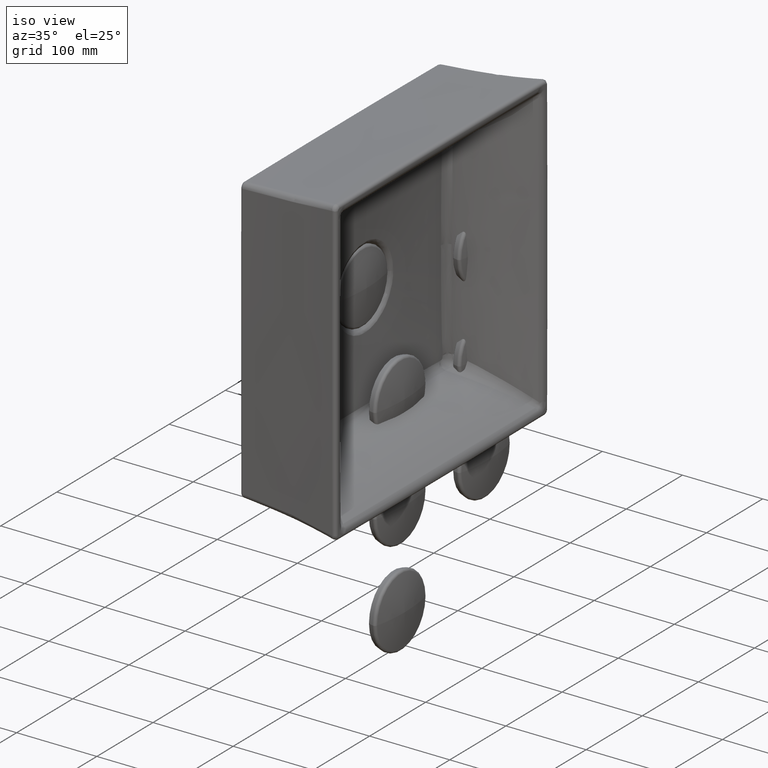
[diagram: clean part render]
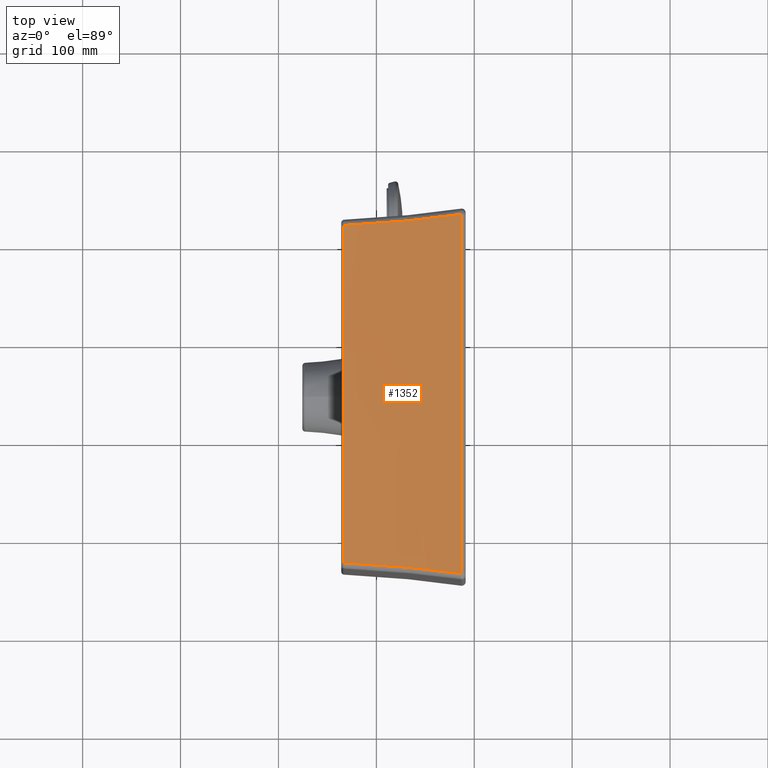
[diagram: tour spotlight — one face highlighted and labeled with its STEP entity id]
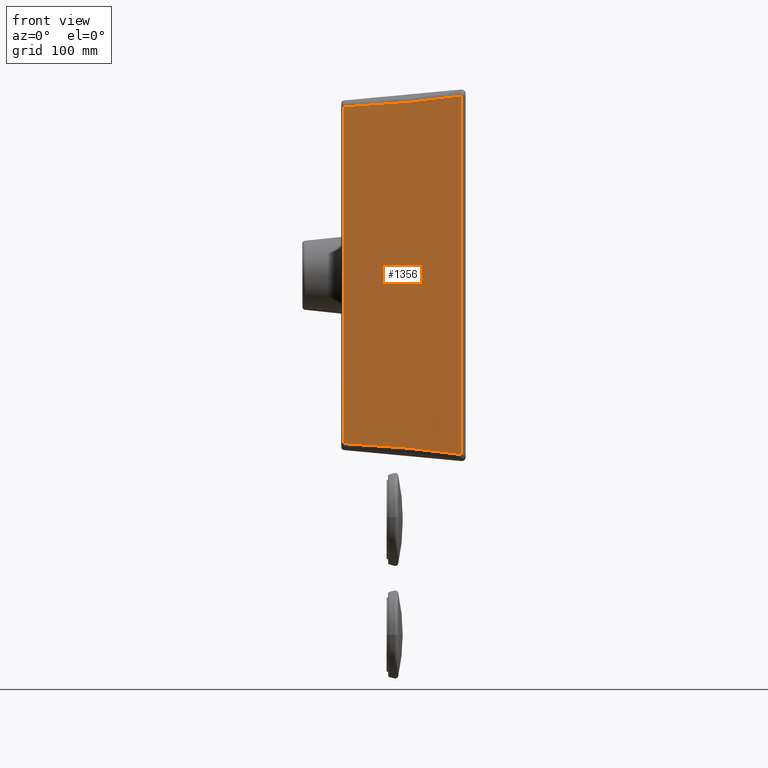
[diagram: tour spotlight — one face highlighted and labeled with its STEP entity id]
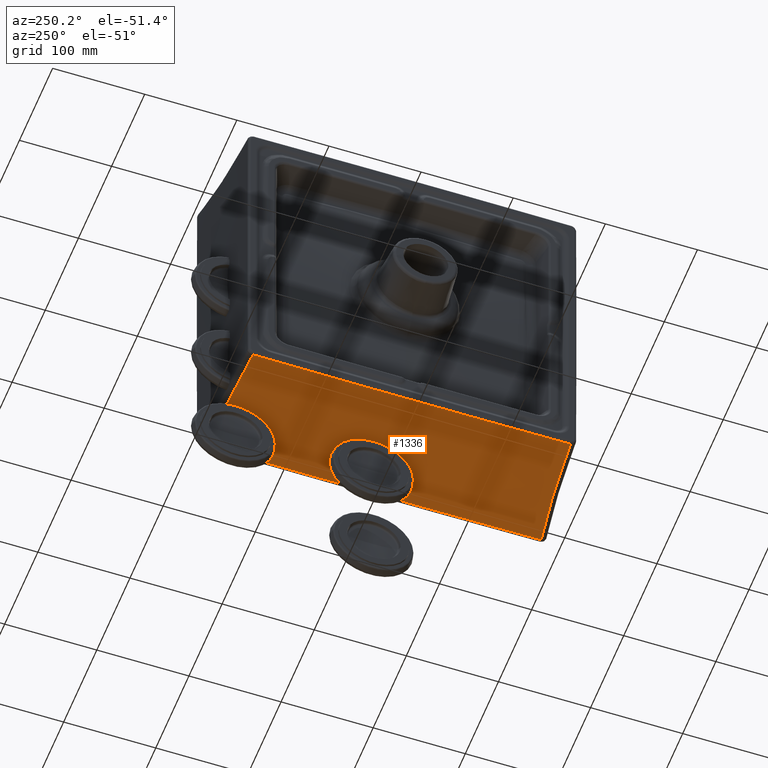
[diagram: tour spotlight — one face highlighted and labeled with its STEP entity id]
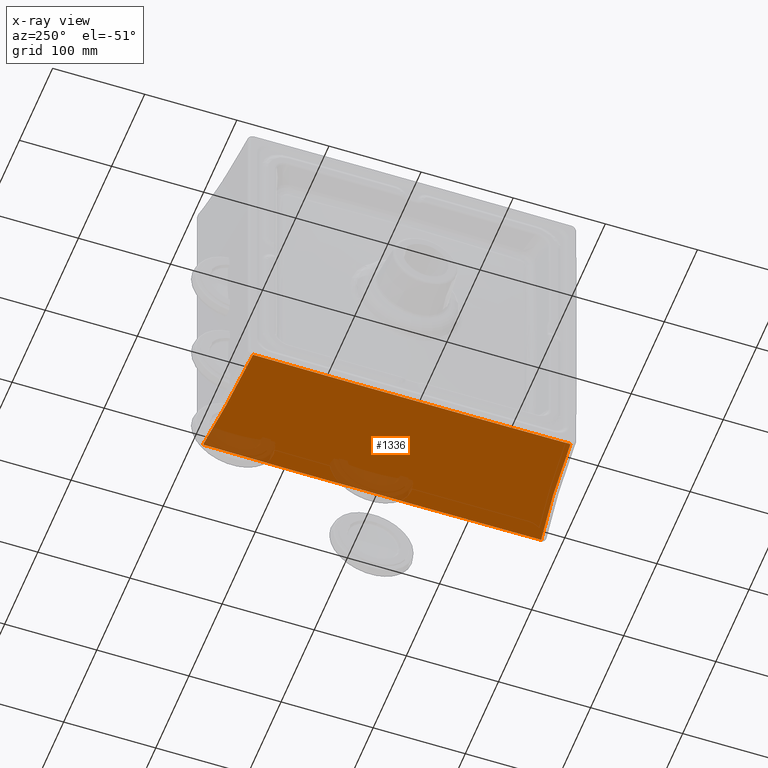
[diagram: x-ray of the same camera — body ghosted, this tour face saturated]
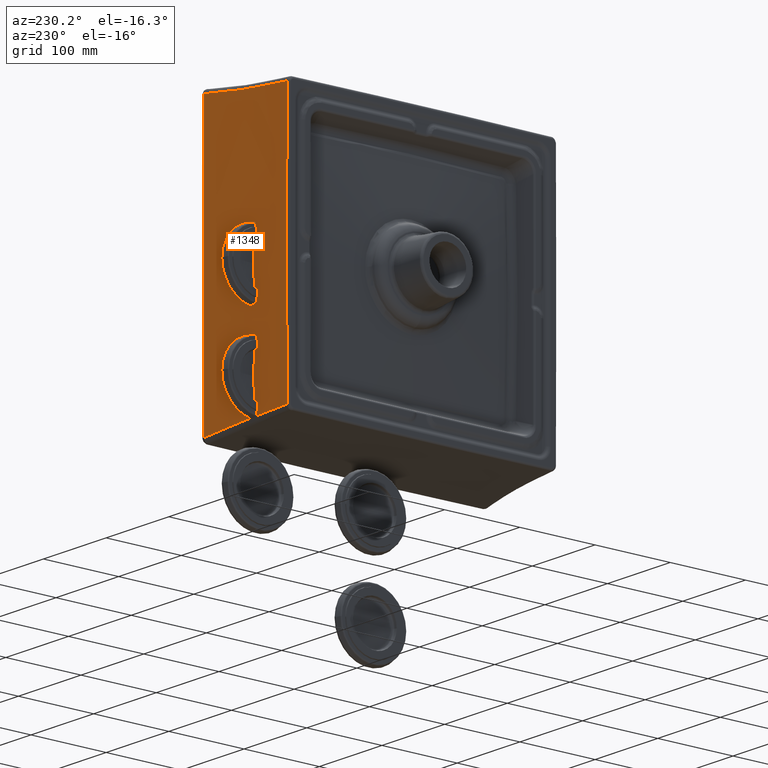
[diagram: tour spotlight — one face highlighted and labeled with its STEP entity id]
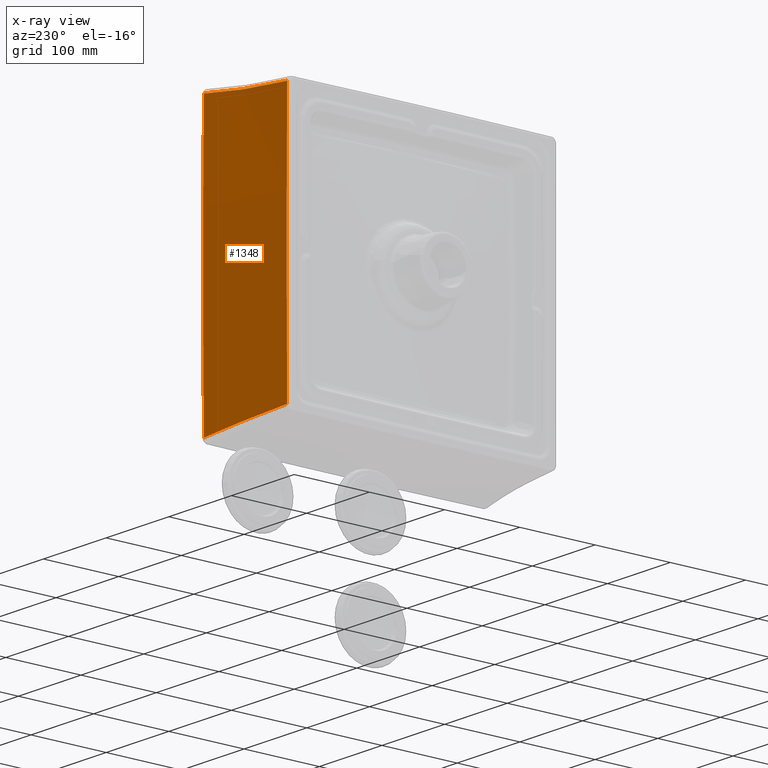
[diagram: x-ray of the same camera — body ghosted, this tour face saturated]
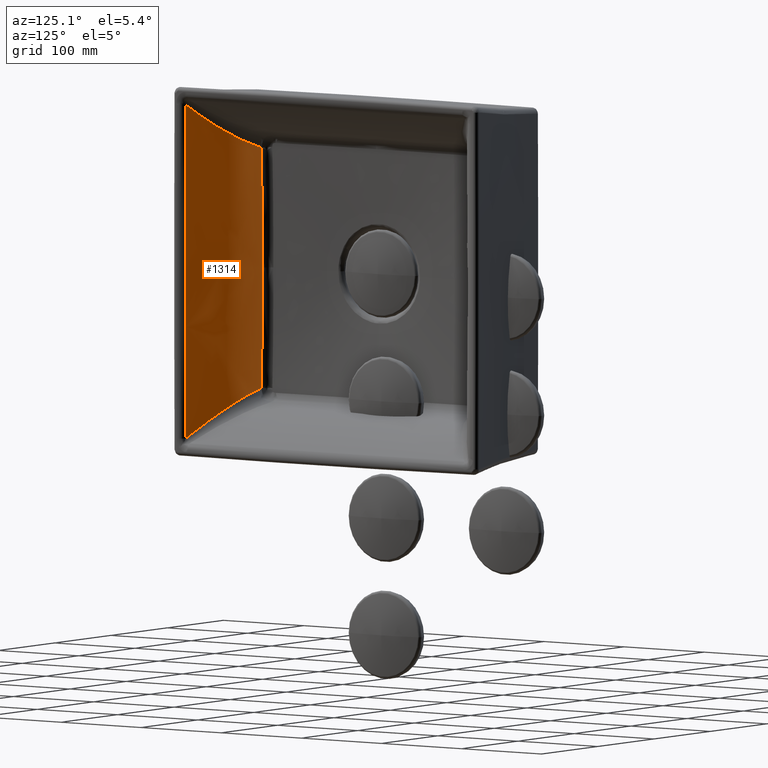
[diagram: tour spotlight — one face highlighted and labeled with its STEP entity id]
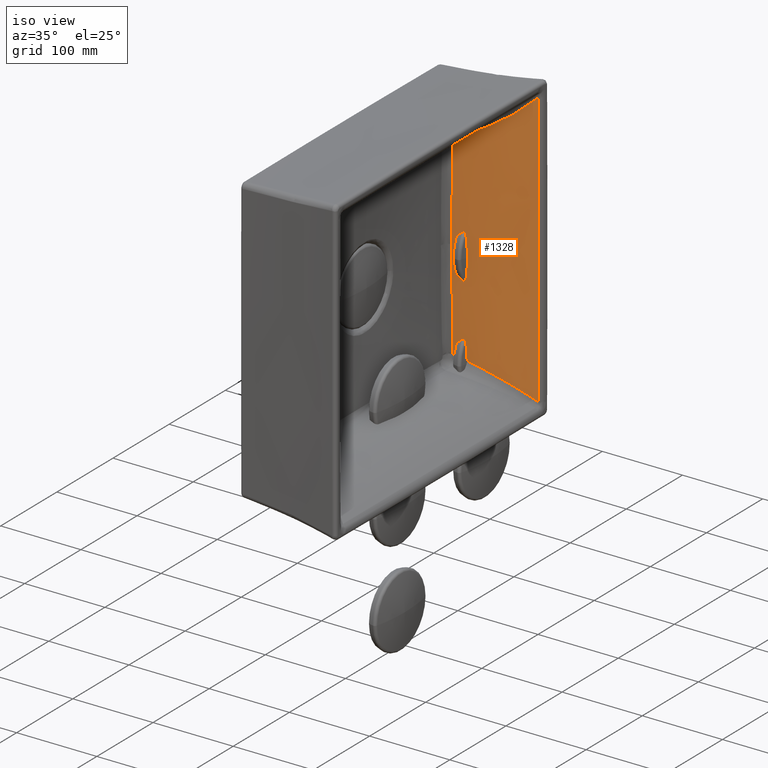
[diagram: tour spotlight — one face highlighted and labeled with its STEP entity id]
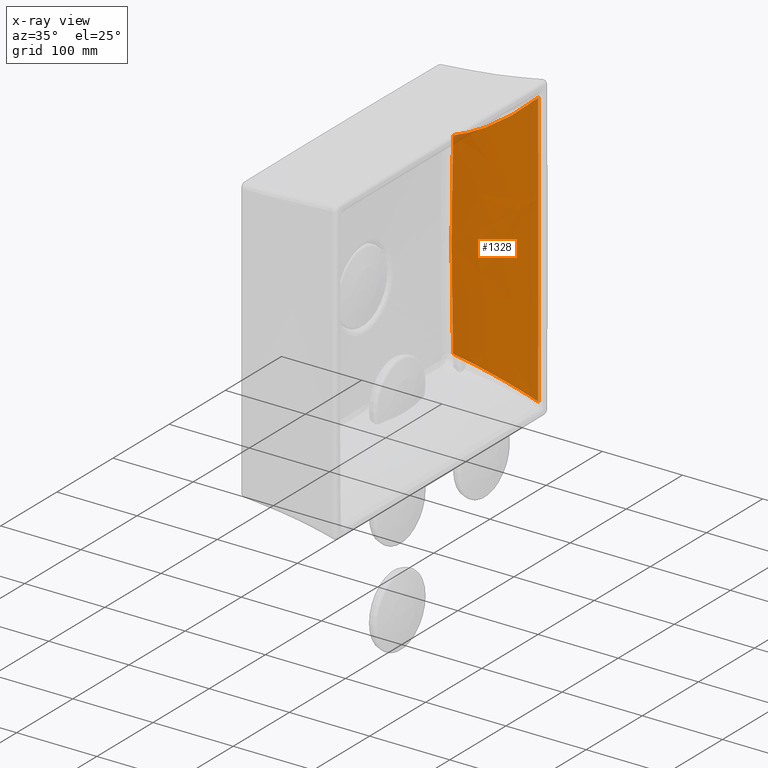
[diagram: x-ray of the same camera — body ghosted, this tour face saturated]
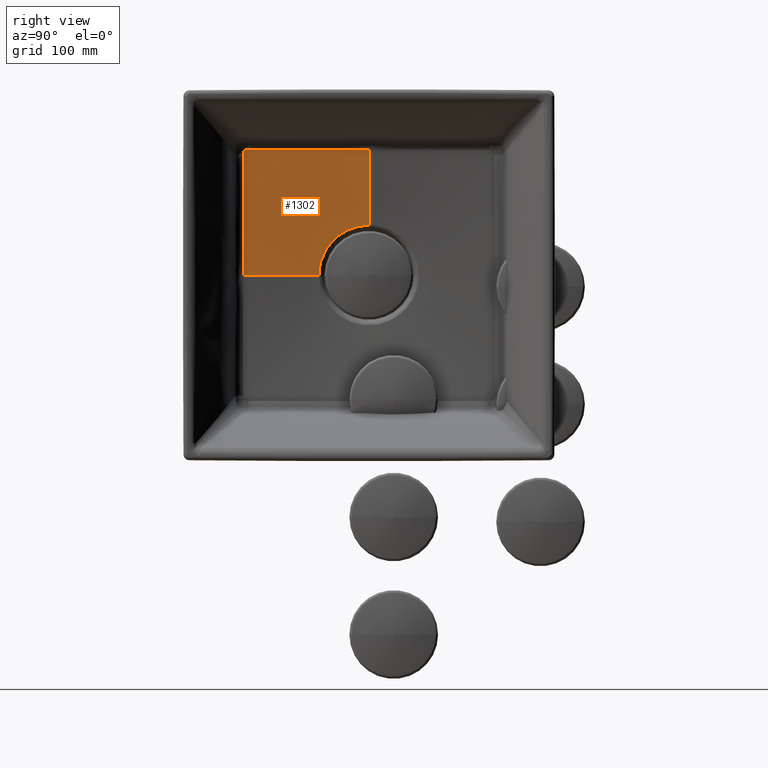
[diagram: tour spotlight — one face highlighted and labeled with its STEP entity id]
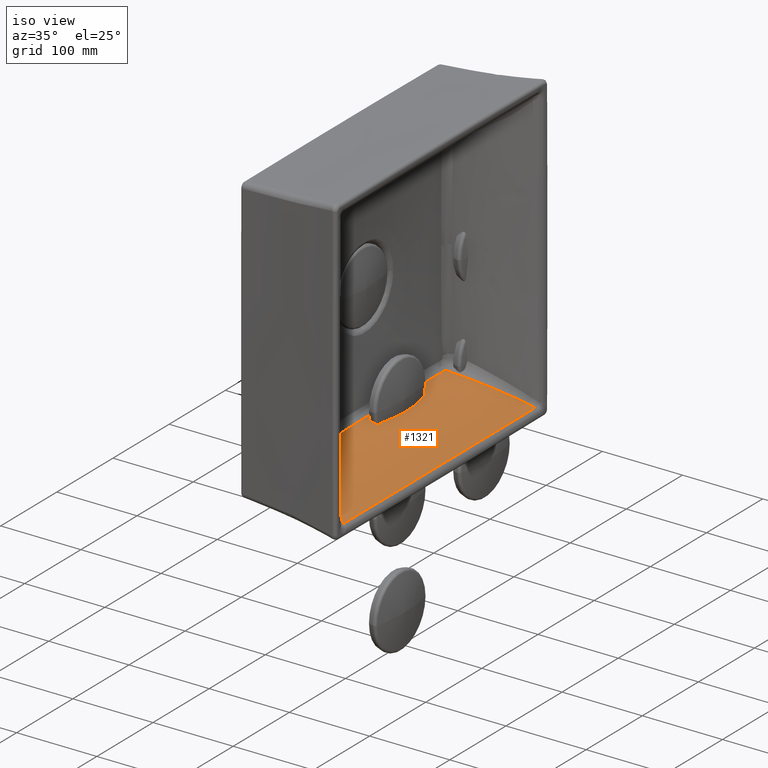
[diagram: tour spotlight — one face highlighted and labeled with its STEP entity id]
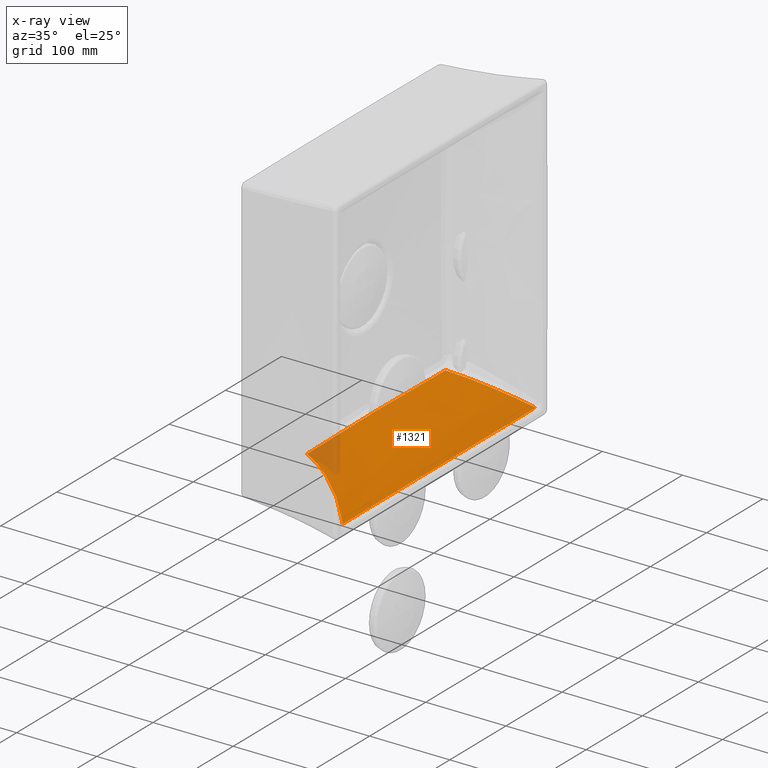
[diagram: x-ray of the same camera — body ghosted, this tour face saturated]
A machine part: a face-by-face anatomy tour. The part has 463 B-rep faces; the first image is the clean iso view, then the 8 largest visible faces are spotlighted one at a time (largest first), each with its STEP entity span.

Face 1 — top view, entity #1352. In plain terms, the highlighted face is a SurfaceOfRevolution surface.
Definition (entity closure, byte-faithful):
#153=SURFACE_OF_REVOLUTION('',#967,#169);
#169=AXIS1_PLACEMENT('',#19183,#8485);
#963=B_SPLINE_CURVE_WITH_KNOTS('',3,(#19063,#19064,#19065,#19066,#19067,
#19068,#19069,#19070,#19071,#19072,#19073,#19074),.UNSPECIFIED.,.F.,.F.,
(4,2,2,2,2,4),(0.,0.25,0.375,0.4375,0.5,1.),.UNSPECIFIED.);
#966=B_SPLINE_CURVE_WITH_KNOTS('',3,(#19165,#19166,#19167,#19168,#19169,
#19170,#19171,#19172,#19173,#19174,#19175,#19176,#19177,#19178),
 .UNSPECIFIED.,.F.,.F.,(4,2,2,2,2,2,4),(0.,0.25,0.375,0.4375,0.46875,0.500000000000001,
1.),.UNSPECIFIED.);
#967=B_SPLINE_CURVE_WITH_KNOTS('',3,(#19179,#19180,#19181,#19182),
 .UNSPECIFIED.,.F.,.F.,(4,4),(0.,1.),.UNSPECIFIED.);
#1352=ADVANCED_FACE('',(#1937),#153,.F.);
#1937=FACE_OUTER_BOUND('',#2389,.T.);
#2389=EDGE_LOOP('',(#3734,#3735,#3736,#3737));
#3734=ORIENTED_EDGE('',*,*,#5923,.F.);
#3735=ORIENTED_EDGE('',*,*,#5922,.T.);
#3736=ORIENTED_EDGE('',*,*,#5918,.F.);
#3737=ORIENTED_EDGE('',*,*,#5905,.F.);
#5054=VERTEX_POINT('',#18754);
#5055=VERTEX_POINT('',#18797);
#5060=VERTEX_POINT('',#19075);
#5061=VERTEX_POINT('',#19162);
#5905=EDGE_CURVE('',#5054,#5055,#6645,.T.);
#5918=EDGE_CURVE('',#5055,#5060,#963,.T.);
#5922=EDGE_CURVE('',#5061,#5060,#6649,.T.);
#5923=EDGE_CURVE('',#5061,#5054,#966,.T.);
#6645=CIRCLE('',#7291,19988.1502047);
#6649=CIRCLE('',#7298,19999.28545984);
#7291=AXIS2_PLACEMENT_3D('',#18796,#8466,#8467);
#7298=AXIS2_PLACEMENT_3D('',#19163,#8481,#8482);
#8466=DIRECTION('',(0.,-1.,0.));
#8467=DIRECTION('',(0.999962828592009,0.,-0.00862214789182308));
#8481=DIRECTION('',(0.,-1.,0.));
#8482=DIRECTION('',(0.999957910630537,0.,-0.00917480067414034));
#8485=DIRECTION('',(0.,1.,0.));
#18754=CARTESIAN_POINT('',(177.9072167131,2.84009586034,-172.3407871231));
#18796=CARTESIAN_POINT('',(-19809.5,2.840096836216,0.));
#18797=CARTESIAN_POINT('',(177.9072170006,2.840096836216,172.3407884247));
#19063=CARTESIAN_POINT('',(177.9072180626,2.840097954687,172.3407884042));
#19064=CARTESIAN_POINT('',(178.616245975761,16.238542615535,173.054606170891));
#19065=CARTESIAN_POINT('',(179.369844790901,28.6123085778846,173.81403687068));
#19066=CARTESIAN_POINT('',(180.580870557879,45.6308280522637,175.035352332999));
#19067=CARTESIAN_POINT('',(180.997087239219,51.046675319815,175.455253502352));
#19068=CARTESIAN_POINT('',(181.63549346319,58.7848233342368,176.099565033979));
#19069=CARTESIAN_POINT('',(181.850607510495,61.2999472148752,176.316710951974));
#19070=CARTESIAN_POINT('',(182.284308445701,66.2017790355761,176.754605572151));
#19071=CARTESIAN_POINT('',(182.497573593205,68.5322156953187,176.969978672235));
#19072=CARTESIAN_POINT('',(184.522233397442,89.9416514796863,179.015181282097));
#19073=CARTESIAN_POINT('',(186.6382539531,107.109718441873,181.154887601724));
#19074=CARTESIAN_POINT('',(188.943714926854,122.398157788839,183.489457066295));
#19075=CARTESIAN_POINT('',(188.9437025306,122.3981596624,183.4894570385));
#19162=CARTESIAN_POINT('',(188.9437025244,122.3981596624,-183.4894577192));
#19163=CARTESIAN_POINT('',(-19809.5,122.3981596624,0.));
#19165=CARTESIAN_POINT('',(188.943715131031,122.398154192371,-183.48945784317));
#19166=CARTESIAN_POINT('',(187.75234815963,114.497858979308,-182.283049331521));
#19167=CARTESIAN_POINT('',(186.614576153608,106.133316659871,-181.131745645487));
#19168=CARTESIAN_POINT('',(185.017459134686,92.8922067084422,-179.516536443592));
#19169=CARTESIAN_POINT('',(184.503241630949,88.3629129243455,-178.996658367527));
#19170=CARTESIAN_POINT('',(183.761355490235,81.3962727823977,-178.246845583929));
#19171=CARTESIAN_POINT('',(183.518951560721,79.0452702829402,-178.001893500647));
#19172=CARTESIAN_POINT('',(183.162846189623,75.4756859456158,-177.642109123797));
#19173=CARTESIAN_POINT('',(183.045393767327,74.2786447517752,-177.523454246754));
#19174=CARTESIAN_POINT('',(182.813005967903,71.8702243697067,-177.288709773786));
#19175=CARTESIAN_POINT('',(182.69308933584,70.6054467057083,-177.16758941197));
#19176=CARTESIAN_POINT('',(180.845367256708,50.79810972644,-175.301502039066));
#19177=CARTESIAN_POINT('',(179.270041343398,28.5925239668551,-173.712787895268));
#19178=CARTESIAN_POINT('',(177.9072173861,2.840095489707,-172.3407871139));
#19179=CARTESIAN_POINT('',(189.78546004,122.3981609824,0.));
#19180=CARTESIAN_POINT('',(183.7639341992,82.8330015164,0.));
#19181=CARTESIAN_POINT('',(180.7836573017,42.80966032222,0.));
#19182=CARTESIAN_POINT('',(178.6502046629,2.840096181414,0.));
#19183=CARTESIAN_POINT('',(-19809.5,126.,0.));

Face 2 — front view, entity #1356. In plain terms, the highlighted face is a SurfaceOfRevolution surface.
Definition (entity closure, byte-faithful):
#154=SURFACE_OF_REVOLUTION('',#972,#170);
#170=AXIS1_PLACEMENT('',#19332,#8490);
#968=B_SPLINE_CURVE_WITH_KNOTS('',3,(#19184,#19185,#19186,#19187,#19188,
#19189,#19190,#19191,#19192,#19193,#19194,#19195,#19196,#19197,#19198,#19199,
#19200,#19201,#19202,#19203,#19204,#19205,#19206,#19207,#19208,#19209,#19210),
 .UNSPECIFIED.,.F.,.F.,(4,2,2,1,2,2,2,2,2,2,2,2,2,4),(0.,0.124999999999999,
0.187499999999999,0.218749999999999,0.234374999999999,0.249999999999999,
0.374999999999999,0.437499999999999,0.5,0.625,0.6875,0.71875,0.75,1.),
 .UNSPECIFIED.);
#971=B_SPLINE_CURVE_WITH_KNOTS('',3,(#19297,#19298,#19299,#19300,#19301,
#19302,#19303,#19304,#19305,#19306,#19307,#19308,#19309,#19310,#19311,#19312,
#19313,#19314,#19315,#19316,#19317,#19318,#19319,#19320,#19321,#19322,#19323,
#19324,#19325,#19326,#19327),.UNSPECIFIED.,.F.,.F.,(4,2,2,2,2,2,2,2,1,2,
2,2,2,2,2,4),(0.,0.0625000000000005,0.0937500000000008,0.125000000000001,
0.187500000000001,0.250000000000002,0.375000000000003,0.437500000000003,
0.468750000000003,0.484375000000003,0.500000000000003,0.625000000000003,
0.687500000000002,0.718750000000002,0.750000000000002,1.),.UNSPECIFIED.);
#972=B_SPLINE_CURVE_WITH_KNOTS('',3,(#19328,#19329,#19330,#19331),
 .UNSPECIFIED.,.F.,.F.,(4,4),(0.,1.),.UNSPECIFIED.);
#1356=ADVANCED_FACE('',(#1941),#154,.T.);
#1941=FACE_OUTER_BOUND('',#2393,.T.);
#2393=EDGE_LOOP('',(#3750,#3751,#3752,#3753));
#3750=ORIENTED_EDGE('',*,*,#5929,.T.);
#3751=ORIENTED_EDGE('',*,*,#5928,.T.);
#3752=ORIENTED_EDGE('',*,*,#5924,.T.);
#3753=ORIENTED_EDGE('',*,*,#5901,.F.);
#5052=VERTEX_POINT('',#18696);
#5053=VERTEX_POINT('',#18744);
#5062=VERTEX_POINT('',#19211);
#5063=VERTEX_POINT('',#19294);
#5901=EDGE_CURVE('',#5052,#5053,#6643,.T.);
#5924=EDGE_CURVE('',#5062,#5053,#968,.T.);
#5928=EDGE_CURVE('',#5063,#5062,#6650,.T.);
#5929=EDGE_CURVE('',#5052,#5063,#971,.T.);
#6643=CIRCLE('',#7288,39988.1502047);
#6650=CIRCLE('',#7300,39999.28545984);
#7288=AXIS2_PLACEMENT_3D('',#18743,#8460,#8461);
#7300=AXIS2_PLACEMENT_3D('',#19295,#8486,#8487);
#8460=DIRECTION('',(0.,-1.,0.));
#8461=DIRECTION('',(-0.00429981708971387,0.,-0.999990755743769));
#8486=DIRECTION('',(0.,-1.,0.));
#8487=DIRECTION('',(-0.00457606704251899,0.,-0.999989529750398));
#8490=DIRECTION('',(0.,-1.,0.));
#18696=CARTESIAN_POINT('',(-171.9417314553,2.840100166085,-178.2804981705));
#18743=CARTESIAN_POINT('',(0.,2.840096836218,39809.5));
#18744=CARTESIAN_POINT('',(171.9417304883,2.840096836218,-178.2805439961));
#19184=CARTESIAN_POINT('',(183.039412202891,122.398156271533,-189.366656819017));
#19185=CARTESIAN_POINT('',(182.427929452089,118.374889384483,-188.757137062839));
#19186=CARTESIAN_POINT('',(181.839561468782,114.290641615366,-188.170413486274));
#19187=CARTESIAN_POINT('',(180.991673705101,108.073070915832,-187.324780891676));
#19188=CARTESIAN_POINT('',(180.714821802861,105.985348785117,-187.048640420235));
#19189=CARTESIAN_POINT('',(180.308208836185,102.831013676981,-186.643020249742));
#19190=CARTESIAN_POINT('',(180.107068572936,101.248158272166,-186.442357291063));
#19191=CARTESIAN_POINT('',(179.909177411249,99.6567808742409,-186.244907526011));
#19192=CARTESIAN_POINT('',(179.777971966281,98.5939700022024,-186.113987229544));
#19193=CARTESIAN_POINT('',(179.716278656373,98.090785010264,-186.052424683978));
#19194=CARTESIAN_POINT('',(179.10041626979,93.0286071863729,-185.43782347348));
#19195=CARTESIAN_POINT('',(178.575842262837,88.4378673268512,-184.914017592687));
#19196=CARTESIAN_POINT('',(177.823264260229,81.4156716574513,-184.162565089736));
#19197=CARTESIAN_POINT('',(177.578118723844,79.0522612590697,-183.917780669002));
#19198=CARTESIAN_POINT('',(177.099253816424,74.2801901178172,-183.439572303089));
#19199=CARTESIAN_POINT('',(176.869780617947,71.9168059216353,-183.210390949014));
#19200=CARTESIAN_POINT('',(176.173020610074,64.4873114091522,-182.514244107855));
#19201=CARTESIAN_POINT('',(175.727553546827,59.3888986730314,-182.068695209075));
#19202=CARTESIAN_POINT('',(175.087911128857,51.5239471277863,-181.429210022227));
#19203=CARTESIAN_POINT('',(174.879456605471,48.866079563979,-181.220835669244));
#19204=CARTESIAN_POINT('',(174.573913321466,44.8251000883814,-180.915397457194));
#19205=CARTESIAN_POINT('',(174.473255304723,43.4690775951452,-180.814770583323));
#19206=CARTESIAN_POINT('',(174.274318537535,40.739002894102,-180.615862075085));
#19207=CARTESIAN_POINT('',(174.172236168925,39.3107675669074,-180.513775314009));
#19208=CARTESIAN_POINT('',(173.332665458911,27.3509560031668,-179.673868362953));
#19209=CARTESIAN_POINT('',(172.620262003359,15.6330626046568,-178.960481965164));
#19210=CARTESIAN_POINT('',(171.941730475647,2.84009683689077,-178.280543996166));
#19211=CARTESIAN_POINT('',(183.0394123131,122.3981596624,-189.3666573346));
#19294=CARTESIAN_POINT('',(-183.0394119171,122.3981596624,-189.3666573364));
#19295=CARTESIAN_POINT('',(0.,122.3981596624,39809.5));
#19297=CARTESIAN_POINT('',(-171.941731652546,2.84009771778899,-178.280544038125));
#19298=CARTESIAN_POINT('',(-172.116410660125,6.13350477627598,-178.455586529233));
#19299=CARTESIAN_POINT('',(-172.292415361351,9.34170181168567,-178.631830663994));
#19300=CARTESIAN_POINT('',(-172.558412210966,14.0257339540558,-178.898255212711));
#19301=CARTESIAN_POINT('',(-172.647409439389,15.5657021355769,-178.987401510405));
#19302=CARTESIAN_POINT('',(-172.826067092012,18.6028275312732,-179.166357680177));
#19303=CARTESIAN_POINT('',(-172.912845679821,20.0527271680056,-179.253281564296));
#19304=CARTESIAN_POINT('',(-173.191466994976,24.6216806031121,-179.532295062034));
#19305=CARTESIAN_POINT('',(-173.381107800287,27.6154505337425,-179.722015679771));
#19306=CARTESIAN_POINT('',(-173.768178131589,33.4982152536352,-180.109235531897));
#19307=CARTESIAN_POINT('',(-173.968997854838,36.434974894323,-180.310125245653));
#19308=CARTESIAN_POINT('',(-174.562800178953,44.8010647133393,-180.904168070371));
#19309=CARTESIAN_POINT('',(-174.978125314856,50.2303794578602,-181.319293120757));
#19310=CARTESIAN_POINT('',(-175.630307482565,58.1509147630296,-181.97145844392));
#19311=CARTESIAN_POINT('',(-175.852567184342,60.7538599560523,-182.193735850974));
#19312=CARTESIAN_POINT('',(-176.193255509041,64.6023155648559,-182.534388473186));
#19313=CARTESIAN_POINT('',(-176.365424356083,66.5125533436555,-182.706521937969));
#19314=CARTESIAN_POINT('',(-176.540330214785,68.4017895636912,-182.881330787254));
#19315=CARTESIAN_POINT('',(-176.657542338807,69.6566118294135,-182.998459490437));
#19316=CARTESIAN_POINT('',(-176.719592071551,70.3147066624037,-183.06045484606));
#19317=CARTESIAN_POINT('',(-177.224264508805,75.6222213111399,-183.56458987124));
#19318=CARTESIAN_POINT('',(-177.694340675285,80.2529603287178,-184.033989111871));
#19319=CARTESIAN_POINT('',(-178.431680662649,87.0678710567659,-184.77029453417));
#19320=CARTESIAN_POINT('',(-178.682831577645,89.3176441936676,-185.021087490134));
#19321=CARTESIAN_POINT('',(-179.067615015954,92.6594524854962,-185.405264328278));
#19322=CARTESIAN_POINT('',(-179.197219004187,93.7679134929933,-185.534653938857));
#19323=CARTESIAN_POINT('',(-179.459112753821,95.9738777455065,-185.796079607375));
#19324=CARTESIAN_POINT('',(-179.598041355485,97.1256323439671,-185.934740442537));
#19325=CARTESIAN_POINT('',(-180.74098594955,106.465560295916,-187.075264656705));
#19326=CARTESIAN_POINT('',(-181.845762740556,114.544390698143,-188.176821323898));
#19327=CARTESIAN_POINT('',(-183.039411832049,122.398159674977,-189.3666573387));
#19328=CARTESIAN_POINT('',(3.069489785674E-012,122.3981608086,-189.7854600135));
#19329=CARTESIAN_POINT('',(3.069027702121E-012,82.83300153973,-183.7639342119));
#19330=CARTESIAN_POINT('',(3.068798999799E-012,42.80966054799,-180.7836573197));
#19331=CARTESIAN_POINT('',(3.068635281598E-012,2.840096607264,-178.6502046856));
#19332=CARTESIAN_POINT('',(0.,128.,39809.5));

Face 3 — auxiliary view, entity #1336. An x-ray twin of the same camera follows (body ghosted, this face saturated) — the face is partly hidden behind the body. In plain terms, the highlighted face is a SurfaceOfRevolution surface.
Definition (entity closure, byte-faithful):
#151=SURFACE_OF_REVOLUTION('',#951,#167);
#167=AXIS1_PLACEMENT('',#18676,#8453);
#949=B_SPLINE_CURVE_WITH_KNOTS('',3,(#18643,#18644,#18645,#18646,#18647,
#18648,#18649,#18650,#18651,#18652,#18653,#18654,#18655,#18656),
 .UNSPECIFIED.,.F.,.F.,(4,2,2,2,2,2,4),(0.,0.249999999999998,0.374999999999997,
0.437499999999997,0.468749999999997,0.499999999999997,1.),.UNSPECIFIED.);
#950=B_SPLINE_CURVE_WITH_KNOTS('',3,(#18658,#18659,#18660,#18661,#18662,
#18663,#18664,#18665,#18666,#18667,#18668,#18669),.UNSPECIFIED.,.F.,.F.,
(4,2,2,2,2,4),(0.,0.25,0.375000000000001,0.437500000000001,0.5,1.),
 .UNSPECIFIED.);
#951=B_SPLINE_CURVE_WITH_KNOTS('',3,(#18672,#18673,#18674,#18675),
 .UNSPECIFIED.,.F.,.F.,(4,4),(0.,1.),.UNSPECIFIED.);
#1336=ADVANCED_FACE('',(#1921),#151,.F.);
#1921=FACE_OUTER_BOUND('',#2373,.T.);
#2373=EDGE_LOOP('',(#3670,#3671,#3672,#3673));
#3670=ORIENTED_EDGE('',*,*,#5894,.F.);
#3671=ORIENTED_EDGE('',*,*,#5893,.T.);
#3672=ORIENTED_EDGE('',*,*,#5895,.F.);
#3673=ORIENTED_EDGE('',*,*,#5896,.F.);
#5048=VERTEX_POINT('',#18635);
#5049=VERTEX_POINT('',#18640);
#5050=VERTEX_POINT('',#18657);
#5051=VERTEX_POINT('',#18670);
#5893=EDGE_CURVE('',#5048,#5049,#6639,.T.);
#5894=EDGE_CURVE('',#5048,#5050,#949,.T.);
#5895=EDGE_CURVE('',#5051,#5049,#950,.T.);
#5896=EDGE_CURVE('',#5050,#5051,#6640,.T.);
#6639=CIRCLE('',#7282,19999.28545984);
#6640=CIRCLE('',#7284,19988.1502047);
#7282=AXIS2_PLACEMENT_3D('',#18641,#8447,#8448);
#7284=AXIS2_PLACEMENT_3D('',#18671,#8451,#8452);
#8447=DIRECTION('',(0.,-1.,0.));
#8448=DIRECTION('',(-0.999957910630557,0.,0.00917480067198961));
#8451=DIRECTION('',(0.,-1.,0.));
#8452=DIRECTION('',(-0.999962828592011,0.,0.00862214789161909));
#8453=DIRECTION('',(0.,1.,0.));
#18635=CARTESIAN_POINT('',(-188.9437025248,122.3981596624,183.4894576762));
#18640=CARTESIAN_POINT('',(-188.9437025282,122.3981596624,-183.4894572965));
#18641=CARTESIAN_POINT('',(19809.5,122.3981596624,0.));
#18643=CARTESIAN_POINT('',(-188.943715078834,122.398154140486,183.48945780467));
#18644=CARTESIAN_POINT('',(-187.751811305596,114.494300757717,182.282505712807));
#18645=CARTESIAN_POINT('',(-186.61362086586,106.126240779746,181.130778266166));
#18646=CARTESIAN_POINT('',(-185.016029683573,92.8799326009524,179.515089505068));
#18647=CARTESIAN_POINT('',(-184.501679947217,88.3489198601841,178.995077831064));
#18648=CARTESIAN_POINT('',(-183.759629100025,81.3797227762845,178.2450989811));
#18649=CARTESIAN_POINT('',(-183.517175885566,79.0278715943275,178.000097275156));
#18650=CARTESIAN_POINT('',(-183.161004374606,75.4570200051828,177.640246433965));
#18651=CARTESIAN_POINT('',(-183.043531203027,74.2595573563053,177.521570729837));
#18652=CARTESIAN_POINT('',(-182.811104386292,71.8502960457329,177.286787146225));
#18653=CARTESIAN_POINT('',(-182.691102997483,70.5843757111694,177.165581359542));
#18654=CARTESIAN_POINT('',(-180.844220756659,50.7822193791944,175.300345198016));
#18655=CARTESIAN_POINT('',(-179.269567481187,28.583563798906,173.712310598653));
#18656=CARTESIAN_POINT('',(-177.9072174142,2.840095467087,172.3407871096));
#18657=CARTESIAN_POINT('',(-177.9072167268,2.840095843962,172.3407871207));
#18658=CARTESIAN_POINT('',(-177.907218167,2.84009798897,-172.3407884529));
#18659=CARTESIAN_POINT('',(-178.615747509273,16.2291299947763,-173.054104620451));
#18660=CARTESIAN_POINT('',(-179.368915719009,28.597661054972,-173.813102884304));
#18661=CARTESIAN_POINT('',(-180.57965530347,45.6145473278444,-175.034131018654));
#18662=CARTESIAN_POINT('',(-180.995841342238,51.0308907595945,-175.454001534596));
#18663=CARTESIAN_POINT('',(-181.634352179603,58.7713257598047,-176.098417689644));
#18664=CARTESIAN_POINT('',(-181.849526290456,61.2874690997083,-176.315623679127));
#18665=CARTESIAN_POINT('',(-182.283407341457,66.1918512492268,-176.753698356425));
#18666=CARTESIAN_POINT('',(-182.497049210782,68.5265278188651,-176.969450768442));
#18667=CARTESIAN_POINT('',(-184.520802508887,89.9276835383288,-179.01372246008));
#18668=CARTESIAN_POINT('',(-186.636498144195,107.098090219131,-181.153109757347));
#18669=CARTESIAN_POINT('',(-188.943715206435,122.398157742369,-183.489457350097));
#18670=CARTESIAN_POINT('',(-177.9072170002,2.840096836217,-172.3407884742));
#18671=CARTESIAN_POINT('',(19809.5,2.840096836217,0.));
#18672=CARTESIAN_POINT('',(39808.78546001,122.3981607906,0.));
#18673=CARTESIAN_POINT('',(39802.76393419,82.83300138371,0.));
#18674=CARTESIAN_POINT('',(39799.7836573,42.80966025087,0.));
#18675=CARTESIAN_POINT('',(39797.65020466,2.840096171283,0.));
#18676=CARTESIAN_POINT('',(19809.5,126.,0.));

Face 4 — auxiliary view, entity #1348. An x-ray twin of the same camera follows (body ghosted, this face saturated) — the face is partly hidden behind the body. In plain terms, the highlighted face is a SurfaceOfRevolution surface.
Definition (entity closure, byte-faithful):
#152=SURFACE_OF_REVOLUTION('',#962,#168);
#168=AXIS1_PLACEMENT('',#19062,#8480);
#958=B_SPLINE_CURVE_WITH_KNOTS('',3,(#18914,#18915,#18916,#18917,#18918,
#18919,#18920,#18921,#18922,#18923,#18924,#18925,#18926,#18927,#18928,#18929,
#18930,#18931,#18932,#18933,#18934,#18935,#18936,#18937,#18938,#18939,#18940),
 .UNSPECIFIED.,.F.,.F.,(4,2,2,1,2,2,2,2,2,2,2,2,2,4),(0.,0.125000000000001,
0.187500000000001,0.218750000000002,0.234375000000002,0.250000000000002,
0.375000000000002,0.437500000000001,0.500000000000001,0.625,0.6875,0.71875,
0.75,1.),.UNSPECIFIED.);
#961=B_SPLINE_CURVE_WITH_KNOTS('',3,(#19027,#19028,#19029,#19030,#19031,
#19032,#19033,#19034,#19035,#19036,#19037,#19038,#19039,#19040,#19041,#19042,
#19043,#19044,#19045,#19046,#19047,#19048,#19049,#19050,#19051,#19052,#19053,
#19054,#19055,#19056,#19057),.UNSPECIFIED.,.F.,.F.,(4,2,2,2,2,2,2,2,1,2,
2,2,2,2,2,4),(0.,0.0625000000000009,0.0937500000000013,0.125000000000002,
0.187500000000002,0.250000000000003,0.375000000000004,0.437500000000005,
0.468750000000005,0.484375000000005,0.500000000000005,0.625000000000004,
0.687500000000003,0.718750000000003,0.750000000000003,1.),.UNSPECIFIED.);
#962=B_SPLINE_CURVE_WITH_KNOTS('',3,(#19058,#19059,#19060,#19061),
 .UNSPECIFIED.,.F.,.F.,(4,4),(0.,1.),.UNSPECIFIED.);
#1348=ADVANCED_FACE('',(#1933),#152,.T.);
#1933=FACE_OUTER_BOUND('',#2385,.T.);
#2385=EDGE_LOOP('',(#3718,#3719,#3720,#3721));
#3718=ORIENTED_EDGE('',*,*,#5917,.T.);
#3719=ORIENTED_EDGE('',*,*,#5916,.T.);
#3720=ORIENTED_EDGE('',*,*,#5912,.T.);
#3721=ORIENTED_EDGE('',*,*,#5909,.F.);
#5056=VERTEX_POINT('',#18816);
#5057=VERTEX_POINT('',#18864);
#5058=VERTEX_POINT('',#18941);
#5059=VERTEX_POINT('',#19024);
#5909=EDGE_CURVE('',#5056,#5057,#6647,.T.);
#5912=EDGE_CURVE('',#5058,#5057,#958,.T.);
#5916=EDGE_CURVE('',#5059,#5058,#6648,.T.);
#5917=EDGE_CURVE('',#5056,#5059,#961,.T.);
#6647=CIRCLE('',#7294,39988.1502047);
#6648=CIRCLE('',#7296,39999.28545984);
#7294=AXIS2_PLACEMENT_3D('',#18863,#8472,#8473);
#7296=AXIS2_PLACEMENT_3D('',#19025,#8476,#8477);
#8472=DIRECTION('',(0.,-1.,0.));
#8473=DIRECTION('',(0.00429981708850889,0.,0.999990755743775));
#8476=DIRECTION('',(0.,-1.,0.));
#8477=DIRECTION('',(0.00457606703602613,0.,0.999989529750428));
#8480=DIRECTION('',(0.,-1.,0.));
#18816=CARTESIAN_POINT('',(171.9417314057,2.840100138981,178.2804981363));
#18863=CARTESIAN_POINT('',(0.,2.840096836217,-39809.5));
#18864=CARTESIAN_POINT('',(-171.9417302538,2.840098904956,178.2804976097));
#18914=CARTESIAN_POINT('',(-183.039412149669,122.398156212779,189.366656808403));
#18915=CARTESIAN_POINT('',(-182.42758461921,118.372621597616,188.756793495267));
#18916=CARTESIAN_POINT('',(-181.83889825564,114.286038295941,188.169752243536));
#18917=CARTESIAN_POINT('',(-180.990572506422,108.064863096044,187.323682191783));
#18918=CARTESIAN_POINT('',(-180.713581206432,105.97592260117,187.04740239909));
#18919=CARTESIAN_POINT('',(-180.306769037173,102.819734740982,186.64158291451));
#18920=CARTESIAN_POINT('',(-180.105531646124,101.235946658978,186.440822714577));
#18921=CARTESIAN_POINT('',(-179.907547066488,99.643627151732,186.243279306334));
#18922=CARTESIAN_POINT('',(-179.776280167237,98.5801861131533,186.112297377056));
#18923=CARTESIAN_POINT('',(-179.714533498067,98.0764994518487,186.050681425832));
#18924=CARTESIAN_POINT('',(-179.098609384899,93.0131368997073,185.436016900288));
#18925=CARTESIAN_POINT('',(-178.573991510158,88.4213408323841,184.912167838074));
#18926=CARTESIAN_POINT('',(-177.821364189191,81.3975569605509,184.160667456967));
#18927=CARTESIAN_POINT('',(-177.576204960555,79.0336165142679,183.91586988669));
#18928=CARTESIAN_POINT('',(-177.097318160036,74.2604841303378,183.437640310942));
#18929=CARTESIAN_POINT('',(-176.867749119926,71.8956428687999,183.208363339407));
#18930=CARTESIAN_POINT('',(-176.171235664204,64.467330901592,182.512461753696));
#18931=CARTESIAN_POINT('',(-175.725920677774,59.369724534004,182.067064253979));
#18932=CARTESIAN_POINT('',(-175.086487942311,51.5060093427778,181.427787696538));
#18933=CARTESIAN_POINT('',(-174.878100240982,48.8485583617795,181.219479816786));
#18934=CARTESIAN_POINT('',(-174.572652582783,44.8082104119849,180.914136750589));
#18935=CARTESIAN_POINT('',(-174.472025673438,43.4523995358037,180.813540831923));
#18936=CARTESIAN_POINT('',(-174.273149585421,40.7227502763926,180.614692727954));
#18937=CARTESIAN_POINT('',(-174.17107368439,39.2943919470775,180.512612298127));
#18938=CARTESIAN_POINT('',(-173.331970148988,27.3395461308747,179.673171757017));
#18939=CARTESIAN_POINT('',(-172.619936873043,15.6269321275354,178.960156135342));
#18940=CARTESIAN_POINT('',(-171.941730453213,2.84009660189498,178.280543988407));
#18941=CARTESIAN_POINT('',(-183.0394122693,122.3981596624,189.3666573348));
#19024=CARTESIAN_POINT('',(183.0394116574,122.3981596624,189.3666573376));
#19025=CARTESIAN_POINT('',(0.,122.3981596624,-39809.5));
#19027=CARTESIAN_POINT('',(171.941731603087,2.84009768868012,178.280544041485));
#19028=CARTESIAN_POINT('',(172.116468617189,6.13459777957626,178.455644625778));
#19029=CARTESIAN_POINT('',(172.292535397625,9.34388283213909,178.631950394032));
#19030=CARTESIAN_POINT('',(172.558631480303,14.029539063558,178.898473809683));
#19031=CARTESIAN_POINT('',(172.647662805422,15.5700472862999,178.987654128376));
#19032=CARTESIAN_POINT('',(172.82639069023,18.6082500632603,179.166680607723));
#19033=CARTESIAN_POINT('',(172.913226122425,20.0590289641296,179.253661509921));
#19034=CARTESIAN_POINT('',(173.191896776156,24.6285645197865,179.532725246681));
#19035=CARTESIAN_POINT('',(173.3815720334,27.6227063300211,179.722480659666));
#19036=CARTESIAN_POINT('',(173.768714387573,33.5061823052816,180.109772601395));
#19037=CARTESIAN_POINT('',(173.969603761333,36.4437294134648,180.310731688739));
#19038=CARTESIAN_POINT('',(174.563427236659,44.8094442441075,180.904793493957));
#19039=CARTESIAN_POINT('',(174.978760730331,50.2384653184678,181.319927817598));
#19040=CARTESIAN_POINT('',(175.630946802272,58.1584952158598,181.972098181305));
#19041=CARTESIAN_POINT('',(175.853206366667,60.7612611235095,182.194375787722));
#19042=CARTESIAN_POINT('',(176.19389232479,64.6094316638134,182.535025997599));
#19043=CARTESIAN_POINT('',(176.366059448471,66.5195228733106,182.707157578288));
#19044=CARTESIAN_POINT('',(176.540962773049,68.4086064876006,182.881963434093));
#19045=CARTESIAN_POINT('',(176.658173027487,69.6633256765438,182.999089884837));
#19046=CARTESIAN_POINT('',(176.720197774851,70.3211141492792,183.06106003643));
#19047=CARTESIAN_POINT('',(177.225075821661,75.6304402726559,183.565398113203));
#19048=CARTESIAN_POINT('',(177.695357147609,80.2627823666525,184.034998621176));
#19049=CARTESIAN_POINT('',(178.43303849085,87.0800860876001,184.771640171659));
#19050=CARTESIAN_POINT('',(178.684308793895,89.3306549538405,185.022550866438));
#19051=CARTESIAN_POINT('',(179.069279721198,92.6736538376221,185.406913165372));
#19052=CARTESIAN_POINT('',(179.198947606925,93.78251120888,185.536366071136));
#19053=CARTESIAN_POINT('',(179.460971954269,95.9892671732753,185.797921325343));
#19054=CARTESIAN_POINT('',(179.600099420279,97.1424889519705,185.936780327677));
#19055=CARTESIAN_POINT('',(180.742467453838,106.476323913409,187.076727931786));
#19056=CARTESIAN_POINT('',(181.846579553415,114.549758745383,188.177634570084));
#19057=CARTESIAN_POINT('',(183.039411542205,122.398159679709,189.366657338851));
#19058=CARTESIAN_POINT('',(-3.069489785677E-012,122.3981609952,-79808.78546004));
#19059=CARTESIAN_POINT('',(-3.069027702122E-012,82.83300166376,-79802.76393422));
#19060=CARTESIAN_POINT('',(-3.068798999799E-012,42.80966060722,-79799.78365732));
#19061=CARTESIAN_POINT('',(-3.068635281598E-012,2.840096601895,-79797.65020469));
#19062=CARTESIAN_POINT('',(0.,128.,-39809.5));

Face 5 — auxiliary view, entity #1314. In plain terms, the highlighted face is a SurfaceOfRevolution surface.
Definition (entity closure, byte-faithful):
#148=SURFACE_OF_REVOLUTION('',#909,#164);
#164=AXIS1_PLACEMENT('',#17299,#8432);
#901=B_SPLINE_CURVE_WITH_KNOTS('',3,(#16979,#16980,#16981,#16982,#16983,
#16984,#16985,#16986,#16987,#16988,#16989,#16990,#16991,#16992,#16993,#16994,
#16995),.UNSPECIFIED.,.F.,.F.,(4,2,2,2,2,1,2,2,4),(0.,0.5,0.5625,0.5703125,
0.578124999999999,0.593749999999999,0.624999999999999,0.749999999999999,
1.),.UNSPECIFIED.);
#906=B_SPLINE_CURVE_WITH_KNOTS('',3,(#17237,#17238,#17239,#17240),
 .UNSPECIFIED.,.F.,.F.,(4,4),(0.,1.),.UNSPECIFIED.);
#907=B_SPLINE_CURVE_WITH_KNOTS('',3,(#17274,#17275,#17276,#17277,#17278,
#17279,#17280,#17281,#17282,#17283,#17284,#17285,#17286,#17287),
 .UNSPECIFIED.,.F.,.F.,(4,2,2,2,2,2,4),(0.,0.25,0.374999999999999,0.406249999999999,
0.437499999999999,0.499999999999999,1.),.UNSPECIFIED.);
#908=B_SPLINE_CURVE_WITH_KNOTS('',3,(#17290,#17291,#17292,#17293),
 .UNSPECIFIED.,.F.,.F.,(4,4),(0.,1.),.UNSPECIFIED.);
#909=B_SPLINE_CURVE_WITH_KNOTS('',3,(#17295,#17296,#17297,#17298),
 .UNSPECIFIED.,.F.,.F.,(4,4),(0.,1.),.UNSPECIFIED.);
#1314=ADVANCED_FACE('',(#1900),#148,.F.);
#1900=FACE_OUTER_BOUND('',#2350,.T.);
#2350=EDGE_LOOP('',(#3567,#3568,#3569,#3570,#3571));
#3567=ORIENTED_EDGE('',*,*,#5846,.T.);
#3568=ORIENTED_EDGE('',*,*,#5847,.T.);
#3569=ORIENTED_EDGE('',*,*,#5845,.T.);
#3570=ORIENTED_EDGE('',*,*,#5840,.T.);
#3571=ORIENTED_EDGE('',*,*,#5848,.T.);
#5020=VERTEX_POINT('',#16893);
#5021=VERTEX_POINT('',#16996);
#5022=VERTEX_POINT('',#17236);
#5023=VERTEX_POINT('',#17288);
#5024=VERTEX_POINT('',#17289);
#5840=EDGE_CURVE('',#5021,#5020,#901,.T.);
#5845=EDGE_CURVE('',#5022,#5021,#906,.T.);
#5846=EDGE_CURVE('',#5023,#5024,#907,.T.);
#5847=EDGE_CURVE('',#5024,#5022,#908,.T.);
#5848=EDGE_CURVE('',#5020,#5023,#6633,.T.);
#6633=CIRCLE('',#7275,39986.30485315);
#7275=AXIS2_PLACEMENT_3D('',#17294,#8430,#8431);
#8430=DIRECTION('',(0.,1.,0.));
#8431=DIRECTION('',(0.00428171207463918,0.,-0.999990833428842));
#8432=DIRECTION('',(0.,-1.,0.));
#16893=CARTESIAN_POINT('',(171.2098444436,123.1641775324,-176.438389027));
#16979=CARTESIAN_POINT('',(123.194935669052,44.6514114457077,-136.783207766953));
#16980=CARTESIAN_POINT('',(127.267786475081,58.9723601972929,-139.633387921267));
#16981=CARTESIAN_POINT('',(133.787521442715,73.8242364417712,-144.686214643978));
#16982=CARTESIAN_POINT('',(143.882524572692,89.985794612638,-153.030653229369));
#16983=CARTESIAN_POINT('',(145.042535377361,91.7733335837818,-153.994567906039));
#16984=CARTESIAN_POINT('',(146.390705090339,93.7722757992363,-155.12048643696));
#16985=CARTESIAN_POINT('',(146.541101137151,93.9942131198627,-155.24616503404));
#16986=CARTESIAN_POINT('',(146.843092129605,94.4377429346607,-155.49867578807));
#16987=CARTESIAN_POINT('',(146.952019699097,94.5969224821555,-155.58981268673));
#16988=CARTESIAN_POINT('',(147.326503621261,95.1425132634818,-155.903249383991));
#16989=CARTESIAN_POINT('',(148.080830170497,96.232990689712,-156.535208490822));
#16990=CARTESIAN_POINT('',(148.851234663208,97.3211219721253,-157.182482043579));
#16991=CARTESIAN_POINT('',(151.454986742336,100.941944857546,-159.37433949461));
#16992=CARTESIAN_POINT('',(153.652346229741,103.818630931696,-161.237553674047));
#16993=CARTESIAN_POINT('',(160.587840258046,112.34472493537,-167.165019179638));
#16994=CARTESIAN_POINT('',(165.669379027568,117.89199012555,-171.567625351872));
#16995=CARTESIAN_POINT('',(171.209844123386,123.164246955302,-176.438314244692));
#16996=CARTESIAN_POINT('',(123.1949343619,44.65149617333,-136.7827839144));
#17236=CARTESIAN_POINT('',(-4.877729999621E-011,42.83568745533,-136.6214743312));
#17237=CARTESIAN_POINT('',(-4.28172665143727E-011,42.8356874784253,-136.621474208027));
#17238=CARTESIAN_POINT('',(49.9478388273957,42.8348740013289,-136.621321685999));
#17239=CARTESIAN_POINT('',(91.0125335405412,43.4405897235275,-136.640416932543));
#17240=CARTESIAN_POINT('',(123.194935669052,44.6514114457036,-136.783207766925));
#17274=CARTESIAN_POINT('',(-171.207274943262,123.163813576943,-176.437922927249));
#17275=CARTESIAN_POINT('',(-165.692308642544,117.915801457931,-171.589671387945));
#17276=CARTESIAN_POINT('',(-160.634999161274,112.398614755274,-167.2082252789));
#17277=CARTESIAN_POINT('',(-153.733949996042,103.92531978785,-161.308936024233));
#17278=CARTESIAN_POINT('',(-151.54775562494,101.067509965463,-159.454520338759));
#17279=CARTESIAN_POINT('',(-148.957564866032,97.4717438639823,-157.272752132814));
#17280=CARTESIAN_POINT('',(-148.490161590202,96.8148073264022,-156.87963189651));
#17281=CARTESIAN_POINT('',(-147.263632234964,95.0563604812697,-155.85050313195));
#17282=CARTESIAN_POINT('',(-146.659867426251,94.1742258081834,-155.345108445044));
#17283=CARTESIAN_POINT('',(-144.877065446607,91.5200522883483,-153.856384843998));
#17284=CARTESIAN_POINT('',(-143.726520649546,89.7402516555646,-152.900518905819));
#17285=CARTESIAN_POINT('',(-133.713362137278,73.6511810136928,-144.625830903672));
#17286=CARTESIAN_POINT('',(-127.242566207965,58.8836976606899,-139.615742156801));
#17287=CARTESIAN_POINT('',(-123.194930838319,44.6514113696444,-136.783207766641));
#17288=CARTESIAN_POINT('',(-171.2098443231,123.164248678,-176.4383158425));
#17289=CARTESIAN_POINT('',(-123.1949308094,44.65141324378,-136.7831983912));
#17290=CARTESIAN_POINT('',(-123.194930838319,44.6514113696401,-136.783207766626));
#17291=CARTESIAN_POINT('',(-91.0114848878527,43.4405767588508,-136.640417571725));
#17292=CARTESIAN_POINT('',(-49.9467917971649,42.8348610523253,-136.621319258139));
#17293=CARTESIAN_POINT('',(-4.28172665143727E-011,42.8356874784253,-136.621474208027));
#17294=CARTESIAN_POINT('',(0.,123.164248678,39809.5));
#17295=CARTESIAN_POINT('',(2.448455012422E-012,123.1642489237,79795.80485338));
#17296=CARTESIAN_POINT('',(2.447209268485E-012,101.248922516,79775.46031098));
#17297=CARTESIAN_POINT('',(2.446332236998E-012,72.26965700805,79761.13729984));
#17298=CARTESIAN_POINT('',(2.445994326678E-012,42.82145037405,79755.61880553));
#17299=CARTESIAN_POINT('',(0.,128.,39809.5));

Face 6 — iso view, entity #1328. An x-ray twin of the same camera follows (body ghosted, this face saturated) — the face is partly hidden behind the body. In plain terms, the highlighted face is a SurfaceOfRevolution surface.
Definition (entity closure, byte-faithful):
#150=SURFACE_OF_REVOLUTION('',#937,#166);
#166=AXIS1_PLACEMENT('',#18220,#8436);
#929=B_SPLINE_CURVE_WITH_KNOTS('',3,(#17900,#17901,#17902,#17903,#17904,
#17905,#17906,#17907,#17908,#17909,#17910,#17911,#17912,#17913,#17914,#17915,
#17916),.UNSPECIFIED.,.F.,.F.,(4,2,2,2,2,1,2,2,4),(0.,0.49999999999998,
0.562499999999978,0.570312499999978,0.578124999999978,0.593749999999978,
0.62499999999998,0.749999999999987,1.),.UNSPECIFIED.);
#934=B_SPLINE_CURVE_WITH_KNOTS('',3,(#18158,#18159,#18160,#18161),
 .UNSPECIFIED.,.F.,.F.,(4,4),(0.,1.),.UNSPECIFIED.);
#935=B_SPLINE_CURVE_WITH_KNOTS('',3,(#18195,#18196,#18197,#18198,#18199,
#18200,#18201,#18202,#18203,#18204,#18205,#18206,#18207,#18208),
 .UNSPECIFIED.,.F.,.F.,(4,2,2,2,2,2,4),(0.,0.249999999999999,0.374999999999999,
0.406249999999999,0.4375,0.5,1.),.UNSPECIFIED.);
#936=B_SPLINE_CURVE_WITH_KNOTS('',3,(#18211,#18212,#18213,#18214),
 .UNSPECIFIED.,.F.,.F.,(4,4),(0.,1.),.UNSPECIFIED.);
#937=B_SPLINE_CURVE_WITH_KNOTS('',3,(#18216,#18217,#18218,#18219),
 .UNSPECIFIED.,.F.,.F.,(4,4),(0.,1.),.UNSPECIFIED.);
#1328=ADVANCED_FACE('',(#1914),#150,.F.);
#1914=FACE_OUTER_BOUND('',#2364,.T.);
#2364=EDGE_LOOP('',(#3625,#3626,#3627,#3628,#3629));
#3625=ORIENTED_EDGE('',*,*,#5874,.T.);
#3626=ORIENTED_EDGE('',*,*,#5875,.T.);
#3627=ORIENTED_EDGE('',*,*,#5873,.T.);
#3628=ORIENTED_EDGE('',*,*,#5868,.T.);
#3629=ORIENTED_EDGE('',*,*,#5876,.T.);
#5034=VERTEX_POINT('',#17806);
#5035=VERTEX_POINT('',#17917);
#5036=VERTEX_POINT('',#18157);
#5037=VERTEX_POINT('',#18209);
#5038=VERTEX_POINT('',#18210);
#5868=EDGE_CURVE('',#5035,#5034,#929,.T.);
#5873=EDGE_CURVE('',#5036,#5035,#934,.T.);
#5874=EDGE_CURVE('',#5037,#5038,#935,.T.);
#5875=EDGE_CURVE('',#5038,#5036,#936,.T.);
#5876=EDGE_CURVE('',#5034,#5037,#6634,.T.);
#6634=CIRCLE('',#7276,39986.30485315);
#7276=AXIS2_PLACEMENT_3D('',#18215,#8434,#8435);
#8434=DIRECTION('',(0.,1.,0.));
#8435=DIRECTION('',(-0.00428171207463818,0.,0.999990833428842));
#8436=DIRECTION('',(0.,-1.,0.));
#17806=CARTESIAN_POINT('',(-171.2098444436,123.1641775322,176.4383890273));
#17900=CARTESIAN_POINT('',(-123.194935532151,44.6514114417636,136.783207766129));
#17901=CARTESIAN_POINT('',(-127.267786268084,58.9723599469926,139.633387870937));
#17902=CARTESIAN_POINT('',(-133.787521264316,73.8242361794136,144.68621451845));
#17903=CARTESIAN_POINT('',(-143.88252453845,89.9857945490661,153.030653194748));
#17904=CARTESIAN_POINT('',(-145.042535360707,91.773333545037,153.994567883922));
#17905=CARTESIAN_POINT('',(-146.390705095208,93.7722757911904,155.120486431939));
#17906=CARTESIAN_POINT('',(-146.541101144433,93.994213115266,155.246165030961));
#17907=CARTESIAN_POINT('',(-146.843092141767,94.4377429370384,155.49867578896));
#17908=CARTESIAN_POINT('',(-146.952019710953,94.596922484036,155.58981268736));
#17909=CARTESIAN_POINT('',(-147.326503635152,95.1425132681303,155.903249386229));
#17910=CARTESIAN_POINT('',(-148.080830188314,96.232990699661,156.535208496192));
#17911=CARTESIAN_POINT('',(-148.8512346844,97.3211219866743,157.182482051826));
#17912=CARTESIAN_POINT('',(-151.454986773749,100.941944885903,159.374339511859));
#17913=CARTESIAN_POINT('',(-153.652346265749,103.818630966201,161.237553696498));
#17914=CARTESIAN_POINT('',(-160.587840297092,112.34472497515,167.165019209385));
#17915=CARTESIAN_POINT('',(-165.66937905429,117.891990151054,171.567625375318));
#17916=CARTESIAN_POINT('',(-171.209844123386,123.164246955349,176.438314244734));
#17917=CARTESIAN_POINT('',(-123.194934225,44.65149616927,136.7827839142));
#18157=CARTESIAN_POINT('',(6.642036136698E-011,42.83568745533,136.6214743312));
#18158=CARTESIAN_POINT('',(6.05569080364278E-011,42.8356874784999,136.621474207629));
#18159=CARTESIAN_POINT('',(-49.9478334984364,42.8348739389413,136.62132167389));
#18160=CARTESIAN_POINT('',(-91.0125281658954,43.4405896598456,136.640416935922));
#18161=CARTESIAN_POINT('',(-123.194935532151,44.6514114417614,136.783207766157));
#18195=CARTESIAN_POINT('',(171.20727494035,123.163813577032,176.437922927349));
#18196=CARTESIAN_POINT('',(165.692308788372,117.915801599564,171.589671518687));
#18197=CARTESIAN_POINT('',(160.63499936306,112.398614969991,167.208225439655));
#18198=CARTESIAN_POINT('',(153.733950143094,103.925319951477,161.308936131972));
#18199=CARTESIAN_POINT('',(151.547755730654,101.06751008562,159.45452041256));
#18200=CARTESIAN_POINT('',(148.957564891209,97.4717438930595,157.272752149714));
#18201=CARTESIAN_POINT('',(148.490161588779,96.8148073222356,156.879631893692));
#18202=CARTESIAN_POINT('',(147.263632239997,95.0563604984005,155.850503141503));
#18203=CARTESIAN_POINT('',(146.659867434329,94.1742258355213,155.34510846034));
#18204=CARTESIAN_POINT('',(144.877065463313,91.520052344896,153.856384874797));
#18205=CARTESIAN_POINT('',(143.726520671328,89.7402517297022,152.900518944915));
#18206=CARTESIAN_POINT('',(133.713362198161,73.6511812273683,144.625831002356));
#18207=CARTESIAN_POINT('',(127.242566258679,58.8836978550503,139.615742194917));
#18208=CARTESIAN_POINT('',(123.194930834521,44.6514113695273,136.7832077662));
#18209=CARTESIAN_POINT('',(171.2098443096,123.164248678,176.4383158426));
#18210=CARTESIAN_POINT('',(123.1949308056,44.65141324356,136.7831983913));
#18211=CARTESIAN_POINT('',(123.194930834521,44.6514113695285,136.7832077662));
#18212=CARTESIAN_POINT('',(91.0114842909299,43.4405767519642,136.640417571784));
#18213=CARTESIAN_POINT('',(49.9467912015205,42.8348610454957,136.621319256447));
#18214=CARTESIAN_POINT('',(6.05569080364278E-011,42.8356874784999,136.621474207629));
#18215=CARTESIAN_POINT('',(0.,123.164248678,-39809.5));
#18216=CARTESIAN_POINT('',(-2.448455012422E-012,123.1642489237,-79795.80485338));
#18217=CARTESIAN_POINT('',(-2.447209268486E-012,101.2489225165,-79775.46031098));
#18218=CARTESIAN_POINT('',(-2.446332236998E-012,72.26965700948,-79761.13729984));
#18219=CARTESIAN_POINT('',(-2.445994326678E-012,42.82145037623,-79755.61880553));
#18220=CARTESIAN_POINT('',(0.,128.,-39809.5));

Face 7 — right view, entity #1302. In plain terms, the highlighted face is a freeform B-spline surface patch.
Definition (entity closure, byte-faithful):
#194=B_SPLINE_SURFACE_WITH_KNOTS('',3,3,((#16199,#16200,#16201,#16202),
(#16203,#16204,#16205,#16206),(#16207,#16208,#16209,#16210),(#16211,#16212,
#16213,#16214),(#16215,#16216,#16217,#16218),(#16219,#16220,#16221,#16222),
(#16223,#16224,#16225,#16226),(#16227,#16228,#16229,#16230),(#16231,#16232,
#16233,#16234),(#16235,#16236,#16237,#16238),(#16239,#16240,#16241,#16242),
(#16243,#16244,#16245,#16246),(#16247,#16248,#16249,#16250),(#16251,#16252,
#16253,#16254),(#16255,#16256,#16257,#16258),(#16259,#16260,#16261,#16262),
(#16263,#16264,#16265,#16266)),.UNSPECIFIED.,.F.,.F.,.F.,(4,1,1,1,1,1,1,
1,1,1,1,1,1,1,4),(4,4),(0.,0.125,0.1875,0.25,0.3125,0.375,0.4375,0.5,0.5625,
0.625,0.6875,0.75,0.8125,0.875,1.),(0.,1.),.UNSPECIFIED.);
#513=LINE('',#16167,#587);
#514=LINE('',#16198,#588);
#587=VECTOR('',#8425,1.);
#588=VECTOR('',#8426,1.);
#875=B_SPLINE_CURVE_WITH_KNOTS('',3,(#16079,#16080,#16081,#16082,#16083,
#16084,#16085,#16086,#16087,#16088,#16089,#16090,#16091,#16092,#16093,#16094,
#16095,#16096,#16097,#16098,#16099,#16100,#16101,#16102,#16103,#16104,#16105,
#16106,#16107,#16108,#16109,#16110,#16111,#16112,#16113,#16114,#16115,#16116,
#16117,#16118),.UNSPECIFIED.,.F.,.F.,(4,2,2,2,2,2,2,2,2,2,2,2,2,2,2,2,2,
2,2,4),(0.,0.125000000000001,0.187500000000001,0.218750000000001,0.234375000000001,
0.242187500000001,0.250000000000001,0.375000000000003,0.437500000000003,
0.468750000000004,0.484375000000004,0.492187500000004,0.500000000000004,
0.625000000000003,0.687500000000002,0.718750000000002,0.734375000000002,
0.750000000000002,0.875000000000001,1.),.UNSPECIFIED.);
#876=B_SPLINE_CURVE_WITH_KNOTS('',3,(#16169,#16170,#16171,#16172),
 .UNSPECIFIED.,.F.,.F.,(4,4),(0.,1.),.UNSPECIFIED.);
#877=B_SPLINE_CURVE_WITH_KNOTS('',3,(#16174,#16175,#16176,#16177,#16178,
#16179,#16180,#16181,#16182,#16183,#16184,#16185,#16186,#16187,#16188,#16189),
 .UNSPECIFIED.,.F.,.F.,(4,1,1,1,1,1,1,1,1,1,1,1,1,4),(0.,0.0766003496803923,
0.189633338268546,0.299082013362987,0.407799521705524,0.514705786631207,
0.609669448543478,0.687638613757374,0.75177901283886,0.811472831827852,
0.871328930479515,0.930165902614219,0.986847669546707,1.),.UNSPECIFIED.);
#878=B_SPLINE_CURVE_WITH_KNOTS('',3,(#16191,#16192,#16193,#16194,#16195,
#16196),.UNSPECIFIED.,.F.,.F.,(4,2,4),(0.,0.5,1.),.UNSPECIFIED.);
#1302=ADVANCED_FACE('',(#1888),#194,.T.);
#1888=FACE_OUTER_BOUND('',#2338,.T.);
#2338=EDGE_LOOP('',(#3510,#3511,#3512,#3513,#3514,#3515));
#3510=ORIENTED_EDGE('',*,*,#5811,.T.);
#3511=ORIENTED_EDGE('',*,*,#5812,.F.);
#3512=ORIENTED_EDGE('',*,*,#5813,.F.);
#3513=ORIENTED_EDGE('',*,*,#5814,.F.);
#3514=ORIENTED_EDGE('',*,*,#5815,.F.);
#3515=ORIENTED_EDGE('',*,*,#5810,.F.);
#4996=VERTEX_POINT('',#15812);
#4999=VERTEX_POINT('',#16029);
#5000=VERTEX_POINT('',#16168);
#5001=VERTEX_POINT('',#16173);
#5002=VERTEX_POINT('',#16190);
#5003=VERTEX_POINT('',#16197);
#5810=EDGE_CURVE('',#4999,#4996,#875,.T.);
#5811=EDGE_CURVE('',#4999,#5000,#513,.T.);
#5812=EDGE_CURVE('',#5001,#5000,#876,.T.);
#5813=EDGE_CURVE('',#5002,#5001,#877,.T.);
#5814=EDGE_CURVE('',#5003,#5002,#878,.T.);
#5815=EDGE_CURVE('',#4996,#5003,#514,.T.);
#8425=DIRECTION('',(0.997683692681542,0.0680238881373531,1.34211390458979E-012));
#8426=DIRECTION('',(-9.23296619912316E-013,0.0680238296338112,-0.997683696670418));
#15812=CARTESIAN_POINT('',(7.686554330339E-013,30.24305051683,-51.06474402323));
#16029=CARTESIAN_POINT('',(51.06474404192,30.24305024264,2.509358059801E-012));
#16079=CARTESIAN_POINT('',(51.0647440750111,30.2430497572752,5.02214353170517E-012));
#16080=CARTESIAN_POINT('',(51.0645723215718,30.2430238898233,-2.73548359285991));
#16081=CARTESIAN_POINT('',(50.8480853288533,30.2418543125028,-5.78503907460782));
#16082=CARTESIAN_POINT('',(49.9601204564474,30.2376208160694,-10.7286036439692));
#16083=CARTESIAN_POINT('',(49.5698816568728,30.235802970345,-12.4370572808611));
#16084=CARTESIAN_POINT('',(48.812355685512,30.2325553236748,-15.069724726129));
#16085=CARTESIAN_POINT('',(48.5311400165422,30.2313870028323,-15.9588687023873));
#16086=CARTESIAN_POINT('',(48.0623129214427,30.2295274673819,-17.3066008147504));
#16087=CARTESIAN_POINT('',(47.8981979519901,30.2288897601848,-17.7581746930259));
#16088=CARTESIAN_POINT('',(47.6398074562398,30.2279106349871,-18.4385620277441));
#16089=CARTESIAN_POINT('',(47.5516414547414,30.2275805154703,-18.6658619180503));
#16090=CARTESIAN_POINT('',(47.3711632854011,30.2269136061018,-19.1213875872795));
#16091=CARTESIAN_POINT('',(47.2995036012263,30.2266511143298,-19.2996028713684));
#16092=CARTESIAN_POINT('',(45.343231516086,30.2196133485437,-24.03676360099));
#16093=CARTESIAN_POINT('',(43.1757098762006,30.2136891937039,-27.5344114182753));
#16094=CARTESIAN_POINT('',(40.2182147738963,30.2085786009236,-31.5763805873392));
#16095=CARTESIAN_POINT('',(39.2770258633463,30.2074396623928,-32.7254796714969));
#16096=CARTESIAN_POINT('',(37.9940391686646,30.2063608400751,-34.190466446576));
#16097=CARTESIAN_POINT('',(37.5876319412485,30.2061003631345,-34.6356976952358));
#16098=CARTESIAN_POINT('',(37.0157653101204,30.2058134243067,-35.2434475004242));
#16099=CARTESIAN_POINT('',(36.8314211211197,30.2057351141371,-35.4360106026268));
#16100=CARTESIAN_POINT('',(36.5649460028427,30.2056384508806,-35.7103521875023));
#16101=CARTESIAN_POINT('',(36.4777937666652,30.2056096999435,-35.7993818861203));
#16102=CARTESIAN_POINT('',(36.3069304407623,30.2055583111088,-35.972690123436));
#16103=CARTESIAN_POINT('',(36.2617082090859,30.2055450579723,-36.0184807638615));
#16104=CARTESIAN_POINT('',(34.2143242832196,30.2050458407493,-38.0658136378606));
#16105=CARTESIAN_POINT('',(31.9138697122804,30.2060827090733,-40.05791469373));
#16106=CARTESIAN_POINT('',(27.8019327134118,30.2108703300428,-42.9103009888529));
#16107=CARTESIAN_POINT('',(26.3215418454902,30.2129522998073,-43.8376761740539));
#16108=CARTESIAN_POINT('',(23.9291237489675,30.2166139569144,-45.1558977702659));
#16109=CARTESIAN_POINT('',(23.1030858408217,30.2179226049621,-45.5831359599614));
#16110=CARTESIAN_POINT('',(21.8209530266096,30.2199771347214,-46.2006729998095));
#16111=CARTESIAN_POINT('',(21.3864000269881,30.2206771135457,-46.4026279439015));
#16112=CARTESIAN_POINT('',(20.5029551043996,30.2220990171413,-46.7978623229295));
#16113=CARTESIAN_POINT('',(20.0929469633266,30.2227588555198,-46.975071329133));
#16114=CARTESIAN_POINT('',(15.6386536118287,30.2298712987565,-48.8160038031633));
#16115=CARTESIAN_POINT('',(11.9187882703085,30.2353528580856,-49.7777092176833));
#16116=CARTESIAN_POINT('',(5.30915405243732,30.241844150213,-50.9003846349434));
#16117=CARTESIAN_POINT('',(2.41625440291984,30.243032358792,-51.0646092278712));
#16118=CARTESIAN_POINT('',(5.79720580196313E-015,30.2430503054981,-51.0647440376384));
#16167=CARTESIAN_POINT('',(105.652895277233,33.964970132535,1.36380499309282E-010));
#16168=CARTESIAN_POINT('',(128.3878285187,35.5150982472,9.692231469725E-010));
#16169=CARTESIAN_POINT('',(128.157247019646,37.4421368877463,-123.711304180894));
#16170=CARTESIAN_POINT('',(128.248339129011,35.9124990713008,-82.4802698488534));
#16171=CARTESIAN_POINT('',(128.388164629611,35.517175384735,-41.2251157833205));
#16172=CARTESIAN_POINT('',(128.38783595282,35.5151177690483,1.91729352663414E-009));
#16173=CARTESIAN_POINT('',(128.1572459534,37.44216152814,-123.7113032644));
#16174=CARTESIAN_POINT('',(123.523630064412,37.4301386217181,-128.325357936265));
#16175=CARTESIAN_POINT('',(123.837872941954,37.4426034639959,-128.325786495086));
#16176=CARTESIAN_POINT('',(124.597513923094,37.4720232937768,-128.305460645136));
#16177=CARTESIAN_POINT('',(125.6788265349,37.51095640992,-128.1905646409));
#16178=CARTESIAN_POINT('',(126.6377275826,37.54082187547,-127.9569799021));
#16179=CARTESIAN_POINT('',(127.2045994854,37.55343414757,-127.6826035208));
#16180=CARTESIAN_POINT('',(127.3720552398,37.5545712503,-127.5338087151));
#16181=CARTESIAN_POINT('',(127.5352467665,37.55323333332,-127.3257272644));
#16182=CARTESIAN_POINT('',(127.7299557891,37.54511048966,-126.9065741251));
#16183=CARTESIAN_POINT('',(127.8850237449,37.53201147115,-126.3971605006));
#16184=CARTESIAN_POINT('',(128.0025653674,37.5155172604,-125.8359091835));
#16185=CARTESIAN_POINT('',(128.0870267509,37.49573114054,-125.2201666033));
#16186=CARTESIAN_POINT('',(128.1390298672,37.47315521656,-124.5620639556));
#16187=CARTESIAN_POINT('',(128.155207287276,37.4547118074444,-124.050403280883));
#16188=CARTESIAN_POINT('',(128.157128971352,37.4441761786619,-123.765254669958));
#16189=CARTESIAN_POINT('',(128.157250523247,37.4421740308874,-123.711302792767));
#16190=CARTESIAN_POINT('',(123.523633806,37.43012039372,-128.3247142289));
#16191=CARTESIAN_POINT('',(-1.47680289221477E-010,35.5150698898549,-128.387830452121));
#16192=CARTESIAN_POINT('',(20.5722749771464,35.5147284713538,-128.387790539183));
#16193=CARTESIAN_POINT('',(41.155668310306,35.5545928003335,-128.364784379916));
#16194=CARTESIAN_POINT('',(82.3399920326674,36.0889339091413,-128.319967209056));
#16195=CARTESIAN_POINT('',(102.941491306261,36.6136925049848,-128.297156156593));
#16196=CARTESIAN_POINT('',(123.523633416083,37.4301302369686,-128.324713827039));
#16197=CARTESIAN_POINT('',(-7.078923840172E-011,35.51507456002,-128.3878301337));
#16198=CARTESIAN_POINT('',(7.686554330339E-013,30.24305051683,-51.06474402323));
#16199=CARTESIAN_POINT('',(0.,30.20984842194,-50.57777685515));
#16200=CARTESIAN_POINT('',(0.,32.71326289567,-87.29452246987));
#16201=CARTESIAN_POINT('',(1.338186598031E-014,35.2166773694,-124.0112680846));
#16202=CARTESIAN_POINT('',(1.99037391918E-014,37.72009184313,-160.7280136993));
#16203=CARTESIAN_POINT('',(3.330272946565,30.20984842194,-50.57777685515));
#16204=CARTESIAN_POINT('',(5.971555727206,32.71326289567,-87.29452246987));
#16205=CARTESIAN_POINT('',(8.612838507848,35.2166773694,-124.0112680846));
#16206=CARTESIAN_POINT('',(11.25412128849,37.72009184313,-160.7280136993));
#16207=CARTESIAN_POINT('',(8.325742177551,30.20906223797,-50.11818099957));
#16208=CARTESIAN_POINT('',(14.93046197537,32.70309782612,-86.83129352003));
#16209=CARTESIAN_POINT('',(21.53518177319,35.19713341426,-123.5444060405));
#16210=CARTESIAN_POINT('',(28.13990157101,37.69116900241,-160.2575185609));
#16211=CARTESIAN_POINT('',(14.80893467496,30.20744454434,-48.5891599024));
#16212=CARTESIAN_POINT('',(26.71896522939,32.68218164266,-85.11497259));
#16213=CARTESIAN_POINT('',(38.62899578383,35.15691874097,-121.6407852776));
#16214=CARTESIAN_POINT('',(50.53902633826,37.63165583928,-158.1665979652));
#16215=CARTESIAN_POINT('',(19.53893003031,30.20619919085,-46.99091157608));
#16216=CARTESIAN_POINT('',(35.4312558272,32.6660796802,-83.20822651384));
#16217=CARTESIAN_POINT('',(51.32358162408,35.12596016955,-119.4255414516));
#16218=CARTESIAN_POINT('',(67.21590742096,37.58584065889,-155.6428563893));
#16219=CARTESIAN_POINT('',(24.09142064774,30.20517044964,-44.9453626216));
#16220=CARTESIAN_POINT('',(43.94532286266,32.65277843479,-80.58014704551));
#16221=CARTESIAN_POINT('',(63.79922507757,35.10038641994,-116.2149314694));
#16222=CARTESIAN_POINT('',(83.65312729249,37.54799440508,-151.8497158933));
#16223=CARTESIAN_POINT('',(28.42138184796,30.20458881303,-42.46081720421));
#16224=CARTESIAN_POINT('',(52.15261604776,32.64525808734,-77.08493816134));
#16225=CARTESIAN_POINT('',(75.88385024757,35.08592736165,-111.7090591185));
#16226=CARTESIAN_POINT('',(99.61508444737,37.52659663597,-146.3331800756));
#16227=CARTESIAN_POINT('',(32.47741565157,30.20462306955,-39.54200262813));
#16228=CARTESIAN_POINT('',(59.86218066809,32.64570101159,-72.53055634078));
#16229=CARTESIAN_POINT('',(87.24694568462,35.08677895363,-105.5191100534));
#16230=CARTESIAN_POINT('',(114.6317107011,37.52785689567,-138.5076637661));
#16231=CARTESIAN_POINT('',(36.20341005205,30.20527812761,-36.20340970973));
#16232=CARTESIAN_POINT('',(66.76366660603,32.65417067132,-66.76366217989));
#16233=CARTESIAN_POINT('',(97.32392316001,35.10306321503,-97.32391465005));
#16234=CARTESIAN_POINT('',(127.884179714,37.55195575874,-127.8841671202));
#16235=CARTESIAN_POINT('',(39.54200230174,30.20630263381,-32.47741595899));
#16236=CARTESIAN_POINT('',(72.53055212072,32.66741715951,-59.86218464293));
#16237=CARTESIAN_POINT('',(105.5191019397,35.12853168522,-87.24695332688));
#16238=CARTESIAN_POINT('',(138.5076517587,37.58964621093,-114.6317220108));
#16239=CARTESIAN_POINT('',(42.46081653924,30.20735396473,-28.42138363359));
#16240=CARTESIAN_POINT('',(77.08492956356,32.68101048162,-52.1526391352));
#16241=CARTESIAN_POINT('',(111.7090425879,35.15466699851,-75.88389463682));
#16242=CARTESIAN_POINT('',(146.3331556122,37.6283235154,-99.61515013844));
#16243=CARTESIAN_POINT('',(44.94536186134,30.20823840069,-24.0914241368));
#16244=CARTESIAN_POINT('',(80.58013721555,32.69244591322,-43.94536797491));
#16245=CARTESIAN_POINT('',(116.2149125698,35.17665342575,-63.79931181303));
#16246=CARTESIAN_POINT('',(151.849687924,37.66086093829,-83.65325565114));
#16247=CARTESIAN_POINT('',(46.99091117108,30.20890666551,-19.53893309271));
#16248=CARTESIAN_POINT('',(83.2082212773,32.70108633143,-35.43129542289));
#16249=CARTESIAN_POINT('',(119.4255313835,35.19326599735,-51.32365775307));
#16250=CARTESIAN_POINT('',(155.6428414897,37.68544566326,-67.21602008325));
#16251=CARTESIAN_POINT('',(48.58915964533,30.20937191833,-14.80893708471));
#16252=CARTESIAN_POINT('',(85.1149692661,32.70710187932,-26.71899638662));
#16253=CARTESIAN_POINT('',(121.6407788869,35.2048318403,-38.62905568853));
#16254=CARTESIAN_POINT('',(158.1665885076,37.70256180128,-50.53911499044));
#16255=CARTESIAN_POINT('',(50.11818100523,30.20976294594,-8.325742798497));
#16256=CARTESIAN_POINT('',(86.83129359324,32.71215772246,-14.93047000398));
#16257=CARTESIAN_POINT('',(123.5444061812,35.21455249898,-21.53519720946));
#16258=CARTESIAN_POINT('',(160.2575187693,37.7169472755,-28.13992441494));
#16259=CARTESIAN_POINT('',(50.57777685515,30.20984842194,-3.330272946565));
#16260=CARTESIAN_POINT('',(87.29452246987,32.71326289567,-5.971555727206));
#16261=CARTESIAN_POINT('',(124.0112680846,35.2166773694,-8.612838507848));
#16262=CARTESIAN_POINT('',(160.7280136993,37.72009184313,-11.25412128849));
#16263=CARTESIAN_POINT('',(50.57777685515,30.20984842194,1.66717387279E-014));
#16264=CARTESIAN_POINT('',(87.29452246987,32.71326289567,1.791675524709E-014));
#16265=CARTESIAN_POINT('',(124.0112680846,35.2166773694,1.916177176628E-014));
#16266=CARTESIAN_POINT('',(160.7280136993,37.72009184313,2.040678828547E-014));

Face 8 — iso view, entity #1321. An x-ray twin of the same camera follows (body ghosted, this face saturated) — the face is partly hidden behind the body. In plain terms, the highlighted face is a SurfaceOfRevolution surface.
Definition (entity closure, byte-faithful):
#149=SURFACE_OF_REVOLUTION('',#923,#165);
#165=AXIS1_PLACEMENT('',#17754,#8433);
#472=(
BOUNDED_CURVE()
B_SPLINE_CURVE(3,(#17746,#17747,#17748,#17749),.UNSPECIFIED.,.F.,.F.)
B_SPLINE_CURVE_WITH_KNOTS((4,4),(0.,1.),.UNSPECIFIED.)
CURVE()
GEOMETRIC_REPRESENTATION_ITEM()
RATIONAL_B_SPLINE_CURVE((1.,0.999975426858953,0.999975426858953,1.))
REPRESENTATION_ITEM('')
);
#915=B_SPLINE_CURVE_WITH_KNOTS('',3,(#17445,#17446,#17447,#17448,#17449,
#17450,#17451,#17452),.UNSPECIFIED.,.F.,.F.,(4,2,2,4),(0.,0.5,0.75,1.),
 .UNSPECIFIED.);
#920=B_SPLINE_CURVE_WITH_KNOTS('',3,(#17687,#17688,#17689,#17690),
 .UNSPECIFIED.,.F.,.F.,(4,4),(0.,1.),.UNSPECIFIED.);
#921=B_SPLINE_CURVE_WITH_KNOTS('',3,(#17721,#17722,#17723,#17724,#17725,
#17726,#17727,#17728,#17729,#17730,#17731,#17732,#17733,#17734,#17735,#17736,
#17737,#17738,#17739),.UNSPECIFIED.,.F.,.F.,(4,1,1,1,1,1,1,1,1,1,1,1,1,
1,1,1,4),(0.,0.00473919360881099,0.0587469759602953,0.115049349009958,0.17373463387906,
0.234845393815458,0.29838647724716,0.364332385218127,0.432619676871053,
0.503157486368736,0.575816883134972,0.650437688443294,0.726835239904187,
0.804803383808513,0.884123266971277,0.964558584283438,1.),.UNSPECIFIED.);
#922=B_SPLINE_CURVE_WITH_KNOTS('',3,(#17742,#17743,#17744,#17745),
 .UNSPECIFIED.,.F.,.F.,(4,4),(0.,1.),.UNSPECIFIED.);
#923=B_SPLINE_CURVE_WITH_KNOTS('',3,(#17750,#17751,#17752,#17753),
 .UNSPECIFIED.,.F.,.F.,(4,4),(0.,1.),.UNSPECIFIED.);
#1321=ADVANCED_FACE('',(#1907),#149,.T.);
#1907=FACE_OUTER_BOUND('',#2357,.T.);
#2357=EDGE_LOOP('',(#3596,#3597,#3598,#3599,#3600));
#3596=ORIENTED_EDGE('',*,*,#5860,.F.);
#3597=ORIENTED_EDGE('',*,*,#5861,.T.);
#3598=ORIENTED_EDGE('',*,*,#5859,.T.);
#3599=ORIENTED_EDGE('',*,*,#5854,.F.);
#3600=ORIENTED_EDGE('',*,*,#5862,.T.);
#5027=VERTEX_POINT('',#17351);
#5028=VERTEX_POINT('',#17453);
#5029=VERTEX_POINT('',#17686);
#5030=VERTEX_POINT('',#17740);
#5031=VERTEX_POINT('',#17741);
#5854=EDGE_CURVE('',#5027,#5028,#915,.T.);
#5859=EDGE_CURVE('',#5029,#5028,#920,.T.);
#5860=EDGE_CURVE('',#5030,#5031,#921,.T.);
#5861=EDGE_CURVE('',#5030,#5029,#922,.T.);
#5862=EDGE_CURVE('',#5027,#5031,#472,.T.);
#8433=DIRECTION('',(0.,1.,0.));
#17351=CARTESIAN_POINT('',(-176.0681365381,123.1642713023,-171.6008644697));
#17445=CARTESIAN_POINT('',(-176.068160883775,123.164248700778,-171.600864678748));
#17446=CARTESIAN_POINT('',(-167.078020126141,113.384917980057,-161.284005264281));
#17447=CARTESIAN_POINT('',(-158.9629682801,101.901555774062,-151.718391307348));
#17448=CARTESIAN_POINT('',(-148.754985382273,82.2393734764511,-139.283577050246));
#17449=CARTESIAN_POINT('',(-145.683867162195,75.2766488603043,-135.460994703035));
#17450=CARTESIAN_POINT('',(-140.409183072654,60.5522957191008,-128.694745599591));
#17451=CARTESIAN_POINT('',(-138.203797182828,52.7866018998098,-125.748491313925));
#17452=CARTESIAN_POINT('',(-136.593525675006,44.6627183547989,-123.431603286965));
#17453=CARTESIAN_POINT('',(-136.5929849433,44.66282649,-123.4315999407));
#17686=CARTESIAN_POINT('',(-136.6214755563,42.83568722562,-1.150807444318E-012));
#17687=CARTESIAN_POINT('',(-136.621474200005,42.8356874793,2.44269538187867E-012));
#17688=CARTESIAN_POINT('',(-136.621892169684,42.8379167229244,-47.7572909129395));
#17689=CARTESIAN_POINT('',(-136.564175384396,43.4474055170107,-88.9006382065928));
#17690=CARTESIAN_POINT('',(-136.593525740921,44.6627183418823,-123.4316032873));
#17721=CARTESIAN_POINT('',(-136.593525674752,44.6627181449739,123.431596584597));
#17722=CARTESIAN_POINT('',(-136.624050631927,44.8167177641862,123.475516439436));
#17723=CARTESIAN_POINT('',(-137.005115647223,46.7241298859774,124.022784099625));
#17724=CARTESIAN_POINT('',(-137.8159774291,50.42137516376,125.1629134588));
#17725=CARTESIAN_POINT('',(-139.1728594545,55.74184622342,127.0115525556));
#17726=CARTESIAN_POINT('',(-140.7541556213,61.16202022754,129.1117718224));
#17727=CARTESIAN_POINT('',(-142.5690630337,66.66754568465,131.4715735379));
#17728=CARTESIAN_POINT('',(-144.6251932726,72.24009024703,134.0971064151));
#17729=CARTESIAN_POINT('',(-146.9283079573,77.8580006902,136.9921622986));
#17730=CARTESIAN_POINT('',(-149.4821053347,83.49688258555,140.1581889466));
#17731=CARTESIAN_POINT('',(-152.2878834848,89.12978400791,143.593799506));
#17732=CARTESIAN_POINT('',(-155.344401014,94.72778993946,147.2945978902));
#17733=CARTESIAN_POINT('',(-158.6476737372,100.2604433606,151.2531510957));
#17734=CARTESIAN_POINT('',(-162.1911070899,105.6966372444,155.4589506667));
#17735=CARTESIAN_POINT('',(-165.9656469263,111.00533631,159.8988044809));
#17736=CARTESIAN_POINT('',(-169.9599207146,116.156134551,164.5567551095));
#17737=CARTESIAN_POINT('',(-173.361225725958,120.175396404989,168.490196336213));
#17738=CARTESIAN_POINT('',(-175.429876271715,122.469917941852,170.868377363047));
#17739=CARTESIAN_POINT('',(-176.067105412535,123.163100504362,171.599647005606));
#17740=CARTESIAN_POINT('',(-136.5935200358,44.66271939107,123.4315959557));
#17741=CARTESIAN_POINT('',(-176.0681637273,123.164248678,171.6008627882));
#17742=CARTESIAN_POINT('',(-136.593525766706,44.6627182450087,123.431595991156));
#17743=CARTESIAN_POINT('',(-136.564175317,43.4474032317415,88.900573337301));
#17744=CARTESIAN_POINT('',(-136.621891746955,42.8379144682964,47.7572284783488));
#17745=CARTESIAN_POINT('',(-136.621474200005,42.8356874793,2.44269538187867E-012));
#17746=CARTESIAN_POINT('',(-176.06816371018,123.164248677416,-171.600864703008));
#17747=CARTESIAN_POINT('',(-177.050422326382,123.164248677416,-57.2016944979434));
#17748=CARTESIAN_POINT('',(-177.050422331864,123.164248677416,57.2016925830186));
#17749=CARTESIAN_POINT('',(-176.068163726622,123.164248677416,171.600862788177));
#17750=CARTESIAN_POINT('',(39795.80485338,123.1642489245,-4.895232853095E-012));
#17751=CARTESIAN_POINT('',(39775.4635896,101.2524542723,-4.890250680378E-012));
#17752=CARTESIAN_POINT('',(39761.14191644,72.27899710878,-4.886742882139E-012));
#17753=CARTESIAN_POINT('',(39755.6214742,42.8356874793,-4.885390763757E-012));
#17754=CARTESIAN_POINT('',(19809.5,126.,0.));